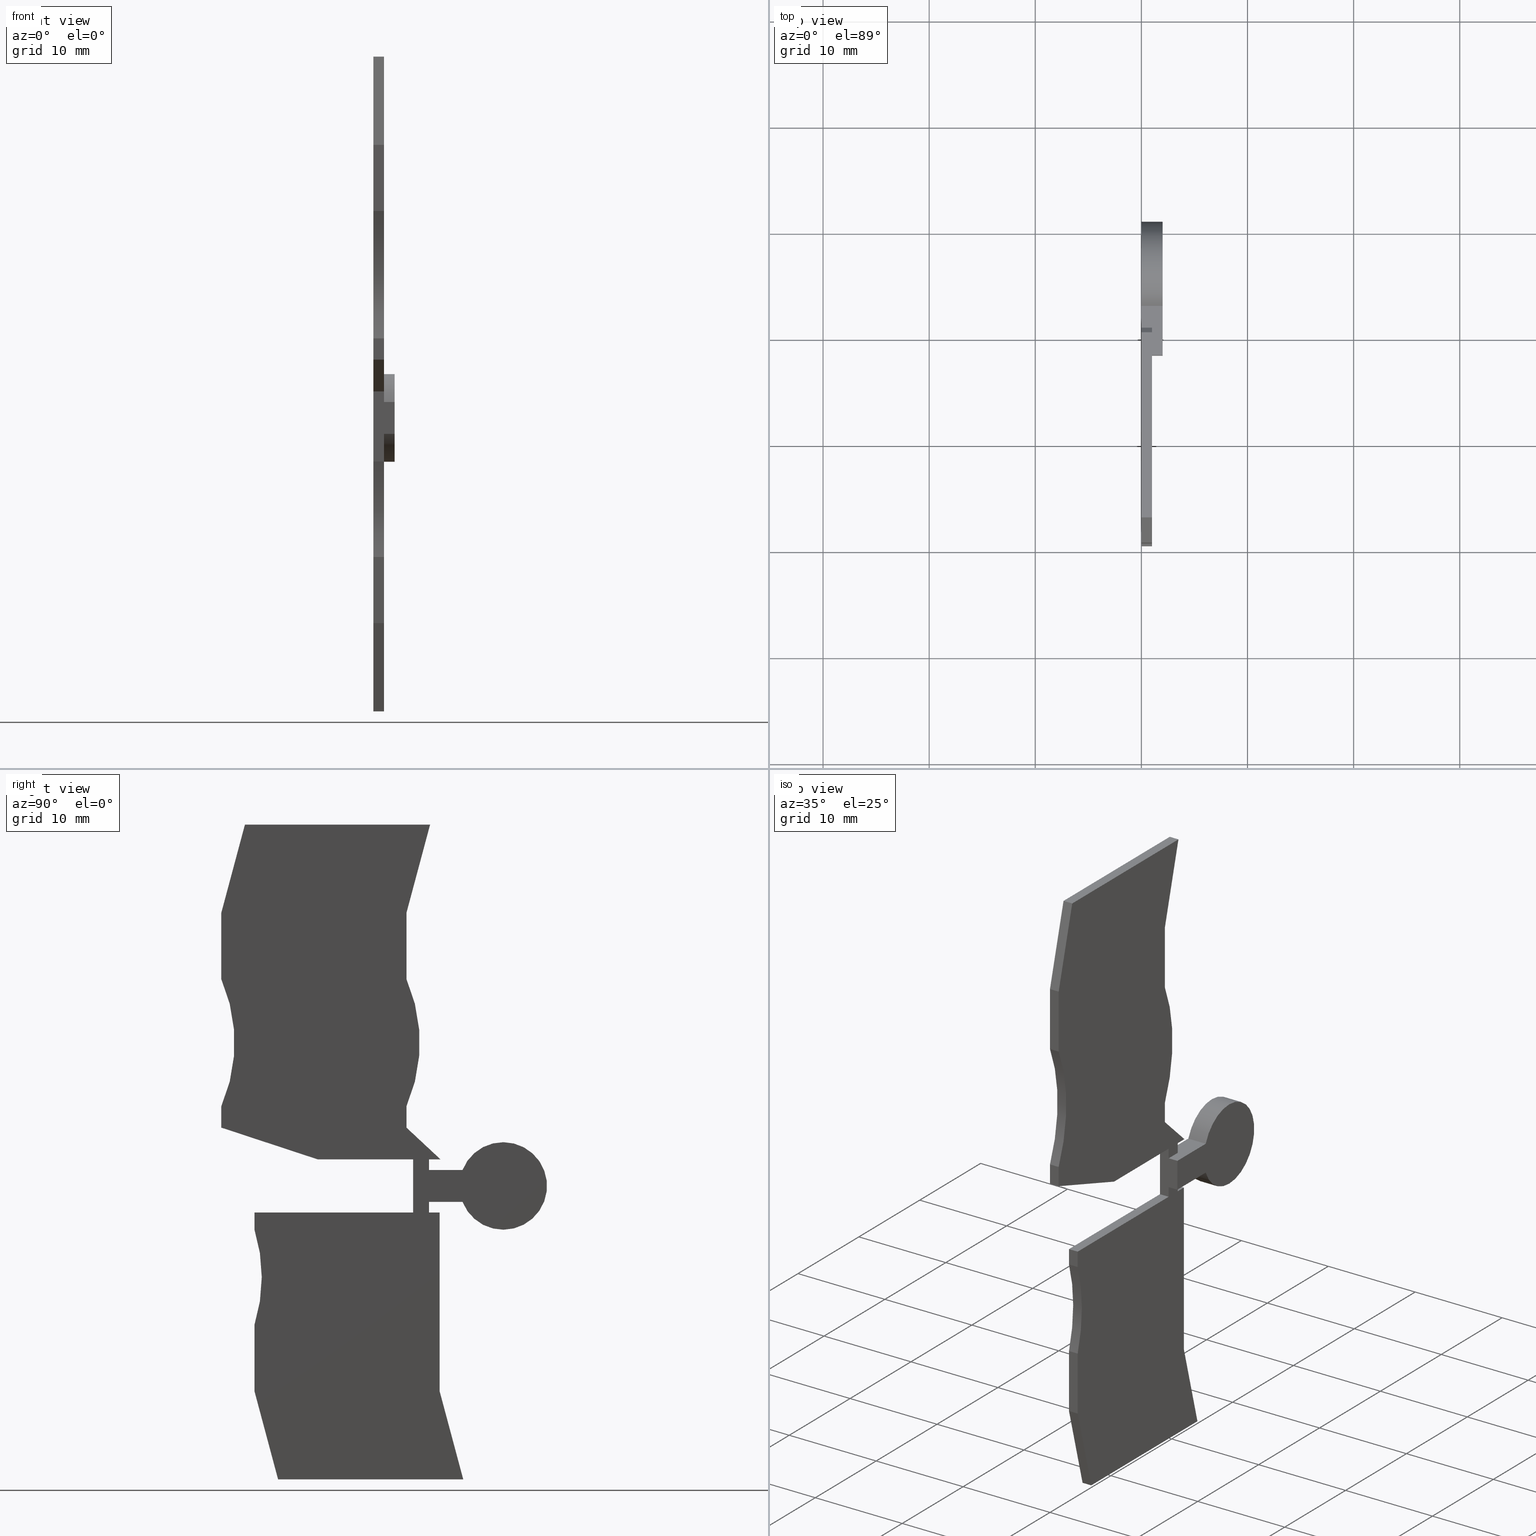
[diagram: canonical four-view strip — front | top / right | iso, engineering-drawing reading convention]
A machine part, canonical four-view strip (front | top / right | iso — engineering-drawing reading convention). The complete STEP part file that produces these views, byte-faithful:
ISO-10303-21;
HEADER;
FILE_DESCRIPTION(('Creo Elements/Direct Modeling STEP Export'),'2;1');
FILE_NAME(
'D:/temp/JobSpoolerServerData/JobServer Files/170c497e-db7a-4ceb-8cc5-0a
7523d1a4d2/work/output/model.stp','2018-03-06T12:17:24',(''),(''),
'Creo Elements/Direct Modeling STEP processor for AP214 (Solid Model)',
'Creo Elements/Direct Modeling 18.1I  14-Aug-2016 (C) Parametric Technol
ogy GmbH','');
FILE_SCHEMA(('AUTOMOTIVE_DESIGN { 1 0 10303 214 1 1 1 1 }'));
ENDSEC;
DATA;
#10=CARTESIAN_POINT('',(42.1016931115784,-23.9833568228416,
3.70000000003257));
#20=DIRECTION('',(0.,0.,1.));
#30=DIRECTION('',(-1.,1.22464679914735E-16,0.));
#40=AXIS2_PLACEMENT_3D('',#10,#20,#30);
#50=CYLINDRICAL_SURFACE('',#40,15.);
#60=CARTESIAN_POINT('',(27.7926050903251,-19.4833568228386,
3.70000000003257));
#70=DIRECTION('',(0.,0.,1.));
#80=VECTOR('',#70,1.);
#90=LINE('',#60,#80);
#100=CARTESIAN_POINT('',(27.7926050903251,-19.4833568228386,
3.70000000003257));
#110=VERTEX_POINT('',#100);
#120=CARTESIAN_POINT('',(27.7926050903251,-19.4833568228386,
4.70000000003257));
#130=VERTEX_POINT('',#120);
#140=EDGE_CURVE('',#110,#130,#90,.T.);
#150=ORIENTED_EDGE('',*,*,#140,.T.);
#160=CARTESIAN_POINT('',(42.1016931115784,-23.9833568228416,
3.70000000003257));
#170=DIRECTION('',(0.,0.,1.));
#180=DIRECTION('',(-1.,1.22464679914735E-16,0.));
#190=AXIS2_PLACEMENT_3D('',#160,#170,#180);
#200=CIRCLE('',#190,15.);
#210=CARTESIAN_POINT('',(27.7926050903252,-28.4833568228446,
3.70000000003257));
#220=VERTEX_POINT('',#210);
#230=EDGE_CURVE('',#110,#220,#200,.T.);
#240=ORIENTED_EDGE('',*,*,#230,.F.);
#250=CARTESIAN_POINT('',(27.7926050903252,-28.4833568228446,
3.70000000003257));
#260=DIRECTION('',(0.,0.,-1.));
#270=VECTOR('',#260,1.);
#280=LINE('',#250,#270);
#290=CARTESIAN_POINT('',(27.7926050903252,-28.4833568228446,
4.70000000003257));
#300=VERTEX_POINT('',#290);
#310=EDGE_CURVE('',#300,#220,#280,.T.);
#320=ORIENTED_EDGE('',*,*,#310,.T.);
#330=CARTESIAN_POINT('',(42.1016931115784,-23.9833568228416,
4.70000000003257));
#340=DIRECTION('',(0.,0.,1.));
#350=DIRECTION('',(-1.,1.22464679914735E-16,0.));
#360=AXIS2_PLACEMENT_3D('',#330,#340,#350);
#370=CIRCLE('',#360,15.);
#380=EDGE_CURVE('',#130,#300,#370,.T.);
#390=ORIENTED_EDGE('',*,*,#380,.T.);
#400=EDGE_LOOP('',(#390,#320,#240,#150));
#410=FACE_OUTER_BOUND('',#400,.T.);
#420=ADVANCED_FACE('',(#410),#50,.F.);
#430=COLOUR_RGB('',0.560784339904785,0.588235318660736,0.600000023841858
);
#440=FILL_AREA_STYLE_COLOUR('',#430);
#450=FILL_AREA_STYLE('',(#440));
#460=SURFACE_STYLE_FILL_AREA(#450);
#470=SURFACE_SIDE_STYLE('',(#460));
#480=SURFACE_STYLE_USAGE(.BOTH.,#470);
#490=PRESENTATION_STYLE_ASSIGNMENT((#480));
#500=CARTESIAN_POINT('',(27.7926050903252,-28.7806110286362,
3.70000000003257));
#510=DIRECTION('',(1.,-1.22464679914735E-16,0.));
#520=DIRECTION('',(-1.22464679914735E-16,-1.,0.));
#530=AXIS2_PLACEMENT_3D('',#500,#510,#520);
#540=PLANE('',#530);
#550=CARTESIAN_POINT('',(27.7926050903252,-34.7178123662187,
2.70000000003257));
#560=DIRECTION('',(0.,0.,-1.));
#570=VECTOR('',#560,1.);
#580=LINE('',#550,#570);
#590=CARTESIAN_POINT('',(27.7926050903252,-34.7178123662187,
4.70000000003257));
#600=VERTEX_POINT('',#590);
#610=CARTESIAN_POINT('',(27.7926050903252,-34.7178123662187,
3.70000000003257));
#620=VERTEX_POINT('',#610);
#630=EDGE_CURVE('',#600,#620,#580,.T.);
#640=ORIENTED_EDGE('',*,*,#630,.T.);
#650=CARTESIAN_POINT('',(27.7926050903252,6.334125,4.70000000003257));
#660=DIRECTION('',(-1.22464679914735E-16,-1.,0.));
#670=VECTOR('',#660,1.);
#680=LINE('',#650,#670);
#690=EDGE_CURVE('',#300,#600,#680,.T.);
#700=ORIENTED_EDGE('',*,*,#690,.T.);
#710=ORIENTED_EDGE('',*,*,#310,.F.);
#720=CARTESIAN_POINT('',(27.7926050903252,6.334125,3.70000000003257));
#730=DIRECTION('',(1.22464679914735E-16,1.,0.));
#740=VECTOR('',#730,1.);
#750=LINE('',#720,#740);
#760=EDGE_CURVE('',#620,#220,#750,.T.);
#770=ORIENTED_EDGE('',*,*,#760,.T.);
#780=EDGE_LOOP('',(#770,#710,#700,#640));
#790=FACE_OUTER_BOUND('',#780,.T.);
#800=ADVANCED_FACE('',(#790),#540,.T.);
#810=COLOUR_RGB('',0.560784339904785,0.588235318660736,0.600000023841858
);
#820=FILL_AREA_STYLE_COLOUR('',#810);
#830=FILL_AREA_STYLE('',(#820));
#840=SURFACE_STYLE_FILL_AREA(#830);
#850=SURFACE_SIDE_STYLE('',(#840));
#860=SURFACE_STYLE_USAGE(.BOTH.,#850);
#870=PRESENTATION_STYLE_ASSIGNMENT((#860));
#880=CARTESIAN_POINT('',(-22.8290705742314,5.54023584404125,
3.70000000003257));
#890=DIRECTION('',(0.,0.,-1.));
#900=DIRECTION('',(-1.,0.,0.));
#910=AXIS2_PLACEMENT_3D('',#880,#890,#900);
#920=PLANE('',#910);
#930=CARTESIAN_POINT('',(10.836572,-16.4983885066354,3.70000000003257));
#940=DIRECTION('',(0.949806217012117,0.312838856482264,0.));
#950=VECTOR('',#940,1.);
#960=LINE('',#930,#950);
#970=CARTESIAN_POINT('',(21.8121253777865,-12.8833568228378,
3.70000000003257));
#980=VERTEX_POINT('',#970);
#990=CARTESIAN_POINT('',(30.9174891315682,-9.8843118244286,
3.70000000003257));
#1000=VERTEX_POINT('',#990);
#1010=EDGE_CURVE('',#980,#1000,#960,.T.);
#1020=ORIENTED_EDGE('',*,*,#1010,.F.);
#1030=CARTESIAN_POINT('',(30.9174891315682,6.334125,3.70000000003257));
#1040=DIRECTION('',(0.,1.,0.));
#1050=VECTOR('',#1040,1.);
#1060=LINE('',#1030,#1050);
#1070=CARTESIAN_POINT('',(30.9174891315682,-7.88335682284202,
3.70000000003257));
#1080=VERTEX_POINT('',#1070);
#1090=EDGE_CURVE('',#1000,#1080,#1060,.T.);
#1100=ORIENTED_EDGE('',*,*,#1090,.F.);
#1110=CARTESIAN_POINT('',(44.6652162164344,-1.88335682283906,
3.70000000003257));
#1120=DIRECTION('',(0.,0.,1.));
#1130=DIRECTION('',(1.,0.,0.));
#1140=AXIS2_PLACEMENT_3D('',#1110,#1120,#1130);
#1150=CIRCLE('',#1140,15.);
#1160=CARTESIAN_POINT('',(30.9174891315669,4.11664317716097,
3.70000000003257));
#1170=VERTEX_POINT('',#1160);
#1180=EDGE_CURVE('',#1170,#1080,#1150,.T.);
#1190=ORIENTED_EDGE('',*,*,#1180,.T.);
#1200=CARTESIAN_POINT('',(30.9174891315669,6.334125,3.70000000003257));
#1210=DIRECTION('',(-2.77555756156289E-17,1.,0.));
#1220=VECTOR('',#1210,1.);
#1230=LINE('',#1200,#1220);
#1240=CARTESIAN_POINT('',(30.9174891315669,10.3510987205322,
3.70000000003257));
#1250=VERTEX_POINT('',#1240);
#1260=EDGE_CURVE('',#1170,#1250,#1230,.T.);
#1270=ORIENTED_EDGE('',*,*,#1260,.F.);
#1280=CARTESIAN_POINT('',(31.9938339960023,6.334125,3.70000000003257));
#1290=DIRECTION('',(-0.258819045102903,0.965925826288966,0.));
#1300=VECTOR('',#1290,1.);
#1310=LINE('',#1280,#1300);
#1320=CARTESIAN_POINT('',(28.6893457097867,18.6666431771532,
3.70000000003257));
#1330=VERTEX_POINT('',#1320);
#1340=EDGE_CURVE('',#1250,#1330,#1310,.T.);
#1350=ORIENTED_EDGE('',*,*,#1340,.F.);
#1360=CARTESIAN_POINT('',(10.836572,18.6666431771532,3.70000000003257));
#1370=DIRECTION('',(-1.,2.08170844255253E-16,0.));
#1380=VECTOR('',#1370,1.);
#1390=LINE('',#1360,#1380);
#1400=CARTESIAN_POINT('',(11.2393457097867,18.6666431771532,
3.70000000003257));
#1410=VERTEX_POINT('',#1400);
#1420=EDGE_CURVE('',#1330,#1410,#1390,.T.);
#1430=ORIENTED_EDGE('',*,*,#1420,.F.);
#1440=CARTESIAN_POINT('',(14.5438339960023,6.334125,3.70000000003257));
#1450=DIRECTION('',(0.258819045102908,-0.965925826288965,0.));
#1460=VECTOR('',#1450,1.);
#1470=LINE('',#1440,#1460);
#1480=CARTESIAN_POINT('',(13.4674891329061,10.3510987155344,
3.70000000003257));
#1490=VERTEX_POINT('',#1480);
#1500=EDGE_CURVE('',#1410,#1490,#1470,.T.);
#1510=ORIENTED_EDGE('',*,*,#1500,.F.);
#1520=CARTESIAN_POINT('',(13.4674891329061,6.334125,3.70000000003257));
#1530=DIRECTION('',(0.,-1.,0.));
#1540=VECTOR('',#1530,1.);
#1550=LINE('',#1520,#1540);
#1560=CARTESIAN_POINT('',(13.4674891329061,4.11664317715268,
3.70000000003257));
#1570=VERTEX_POINT('',#1560);
#1580=EDGE_CURVE('',#1490,#1570,#1550,.T.);
#1590=ORIENTED_EDGE('',*,*,#1580,.F.);
#1600=CARTESIAN_POINT('',(27.2152162177738,-1.88335682284693,
3.70000000003257));
#1610=DIRECTION('',(0.,0.,1.));
#1620=DIRECTION('',(1.,0.,0.));
#1630=AXIS2_PLACEMENT_3D('',#1600,#1610,#1620);
#1640=CIRCLE('',#1630,15.);
#1650=CARTESIAN_POINT('',(13.4674891329061,-7.88335682284652,
3.70000000003257));
#1660=VERTEX_POINT('',#1650);
#1670=EDGE_CURVE('',#1570,#1660,#1640,.T.);
#1680=ORIENTED_EDGE('',*,*,#1670,.F.);
#1690=CARTESIAN_POINT('',(13.4674891329061,6.334125,3.70000000003257));
#1700=DIRECTION('',(0.,-1.,0.));
#1710=VECTOR('',#1700,1.);
#1720=LINE('',#1690,#1710);
#1730=CARTESIAN_POINT('',(13.4674891329061,-9.88335682284312,
3.70000000003257));
#1740=VERTEX_POINT('',#1730);
#1750=EDGE_CURVE('',#1660,#1740,#1720,.T.);
#1760=ORIENTED_EDGE('',*,*,#1750,.F.);
#1770=CARTESIAN_POINT('',(10.836572,-12.3376813332395,3.70000000003257))
;
#1780=DIRECTION('',(-0.731221353984691,-0.682140257921196,0.));
#1790=VECTOR('',#1780,1.);
#1800=LINE('',#1770,#1790);
#1810=CARTESIAN_POINT('',(10.2516342753797,-12.8833568228378,
3.70000000003257));
#1820=VERTEX_POINT('',#1810);
#1830=EDGE_CURVE('',#1740,#1820,#1800,.T.);
#1840=ORIENTED_EDGE('',*,*,#1830,.F.);
#1850=CARTESIAN_POINT('',(10.836572,-12.8833568228378,3.70000000003257))
;
#1860=DIRECTION('',(1.,0.,0.));
#1870=VECTOR('',#1860,1.);
#1880=LINE('',#1850,#1870);
#1890=CARTESIAN_POINT('',(11.3426048224249,-12.8833568228378,
3.70000000003257));
#1900=VERTEX_POINT('',#1890);
#1910=EDGE_CURVE('',#1820,#1900,#1880,.T.);
#1920=ORIENTED_EDGE('',*,*,#1910,.F.);
#1930=CARTESIAN_POINT('',(11.3426048224249,6.334125,3.70000000003257));
#1940=DIRECTION('',(0.,-1.,0.));
#1950=VECTOR('',#1940,1.);
#1960=LINE('',#1930,#1950);
#1970=CARTESIAN_POINT('',(11.3426048224249,-13.8833568228378,
3.70000000003257));
#1980=VERTEX_POINT('',#1970);
#1990=EDGE_CURVE('',#1900,#1980,#1960,.T.);
#2000=ORIENTED_EDGE('',*,*,#1990,.F.);
#2010=CARTESIAN_POINT('',(10.836572,-13.8833568228378,3.70000000003257))
;
#2020=DIRECTION('',(1.,0.,0.));
#2030=VECTOR('',#2020,1.);
#2040=LINE('',#2010,#2030);
#2050=CARTESIAN_POINT('',(12.8426048224249,-13.8833568228378,
3.70000000003257));
#2060=VERTEX_POINT('',#2050);
#2070=EDGE_CURVE('',#1980,#2060,#2040,.T.);
#2080=ORIENTED_EDGE('',*,*,#2070,.F.);
#2090=CARTESIAN_POINT('',(12.8426048224249,6.334125,3.70000000003257));
#2100=DIRECTION('',(0.,1.,0.));
#2110=VECTOR('',#2100,1.);
#2120=LINE('',#2090,#2110);
#2130=CARTESIAN_POINT('',(12.8426048224249,-12.8833568228378,
3.70000000003257));
#2140=VERTEX_POINT('',#2130);
#2150=EDGE_CURVE('',#2060,#2140,#2120,.T.);
#2160=ORIENTED_EDGE('',*,*,#2150,.F.);
#2170=CARTESIAN_POINT('',(10.836572,-12.8833568228378,3.70000000003257))
;
#2180=DIRECTION('',(1.,0.,0.));
#2190=VECTOR('',#2180,1.);
#2200=LINE('',#2170,#2190);
#2210=EDGE_CURVE('',#2140,#980,#2200,.T.);
#2220=ORIENTED_EDGE('',*,*,#2210,.F.);
#2230=EDGE_LOOP('',(#2220,#2160,#2080,#2000,#1920,#1840,#1760,#1680,
#1590,#1510,#1430,#1350,#1270,#1190,#1100,#1020));
#2240=FACE_OUTER_BOUND('',#2230,.T.);
#2250=ADVANCED_FACE('',(#2240),#920,.T.);
#2260=COLOUR_RGB('',0.560784339904785,0.588235318660736,
0.600000023841858);
#2270=FILL_AREA_STYLE_COLOUR('',#2260);
#2280=FILL_AREA_STYLE('',(#2270));
#2290=SURFACE_STYLE_FILL_AREA(#2280);
#2300=SURFACE_SIDE_STYLE('',(#2290));
#2310=SURFACE_STYLE_USAGE(.BOTH.,#2300);
#2320=PRESENTATION_STYLE_ASSIGNMENT((#2310));
#2330=CARTESIAN_POINT('',(21.4912331232099,-12.8833568228378,
3.70000000003257));
#2340=DIRECTION('',(-0.,-1.,-0.));
#2350=DIRECTION('',(-1.,0.,0.));
#2360=AXIS2_PLACEMENT_3D('',#2330,#2340,#2350);
#2370=PLANE('',#2360);
#2380=ORIENTED_EDGE('',*,*,#2210,.T.);
#2390=CARTESIAN_POINT('',(12.8426048224249,-12.8833568228378,
2.70000000003257));
#2400=DIRECTION('',(0.,0.,1.));
#2410=VECTOR('',#2400,1.);
#2420=LINE('',#2390,#2410);
#2430=CARTESIAN_POINT('',(12.8426048224249,-12.8833568228378,
4.70000000003257));
#2440=VERTEX_POINT('',#2430);
#2450=EDGE_CURVE('',#2140,#2440,#2420,.T.);
#2460=ORIENTED_EDGE('',*,*,#2450,.F.);
#2470=CARTESIAN_POINT('',(10.836572,-12.8833568228378,4.70000000003257))
;
#2480=DIRECTION('',(-1.,0.,0.));
#2490=VECTOR('',#2480,1.);
#2500=LINE('',#2470,#2490);
#2510=CARTESIAN_POINT('',(21.8121253777865,-12.8833568228378,
4.70000000003257));
#2520=VERTEX_POINT('',#2510);
#2530=EDGE_CURVE('',#2520,#2440,#2500,.T.);
#2540=ORIENTED_EDGE('',*,*,#2530,.T.);
#2550=CARTESIAN_POINT('',(21.8121253777865,-12.8833568228378,
2.70000000003257));
#2560=DIRECTION('',(0.,0.,-1.));
#2570=VECTOR('',#2560,1.);
#2580=LINE('',#2550,#2570);
#2590=EDGE_CURVE('',#2520,#980,#2580,.T.);
#2600=ORIENTED_EDGE('',*,*,#2590,.F.);
#2610=EDGE_LOOP('',(#2600,#2540,#2460,#2380));
#2620=FACE_OUTER_BOUND('',#2610,.T.);
#2630=ADVANCED_FACE('',(#2620),#2370,.T.);
#2640=COLOUR_RGB('',0.560784339904785,0.588235318660736,
0.600000023841858);
#2650=FILL_AREA_STYLE_COLOUR('',#2640);
#2660=FILL_AREA_STYLE('',(#2650));
#2670=SURFACE_STYLE_FILL_AREA(#2660);
#2680=SURFACE_SIDE_STYLE('',(#2670));
#2690=SURFACE_STYLE_USAGE(.BOTH.,#2680);
#2700=PRESENTATION_STYLE_ASSIGNMENT((#2690));
#2710=CARTESIAN_POINT('',(10.6426050903255,-17.8833568228378,
3.70000000003257));
#2720=DIRECTION('',(1.22464679914735E-16,1.,0.));
#2730=DIRECTION('',(1.,-1.22464679914735E-16,0.));
#2740=AXIS2_PLACEMENT_3D('',#2710,#2720,#2730);
#2750=PLANE('',#2740);
#2760=CARTESIAN_POINT('',(27.7926050903251,-17.8833568228378,
2.70000000003257));
#2770=DIRECTION('',(0.,0.,-1.));
#2780=VECTOR('',#2770,1.);
#2790=LINE('',#2760,#2780);
#2800=CARTESIAN_POINT('',(27.7926050903251,-17.8833568228378,
4.70000000003257));
#2810=VERTEX_POINT('',#2800);
#2820=CARTESIAN_POINT('',(27.7926050903251,-17.8833568228378,
3.70000000003257));
#2830=VERTEX_POINT('',#2820);
#2840=EDGE_CURVE('',#2810,#2830,#2790,.T.);
#2850=ORIENTED_EDGE('',*,*,#2840,.T.);
#2860=CARTESIAN_POINT('',(10.836572,-17.8833568228378,4.70000000003257))
;
#2870=DIRECTION('',(1.,-1.22464679914735E-16,0.));
#2880=VECTOR('',#2870,1.);
#2890=LINE('',#2860,#2880);
#2900=CARTESIAN_POINT('',(12.8426048224249,-17.8833568228378,
4.70000000003257));
#2910=VERTEX_POINT('',#2900);
#2920=EDGE_CURVE('',#2910,#2810,#2890,.T.);
#2930=ORIENTED_EDGE('',*,*,#2920,.T.);
#2940=CARTESIAN_POINT('',(12.8426048224249,-17.8833568228378,
2.70000000003257));
#2950=DIRECTION('',(0.,0.,1.));
#2960=VECTOR('',#2950,1.);
#2970=LINE('',#2940,#2960);
#2980=CARTESIAN_POINT('',(12.8426048224249,-17.8833568228378,
3.70000000003257));
#2990=VERTEX_POINT('',#2980);
#3000=EDGE_CURVE('',#2990,#2910,#2970,.T.);
#3010=ORIENTED_EDGE('',*,*,#3000,.T.);
#3020=CARTESIAN_POINT('',(10.836572,-17.8833568228378,3.70000000003257))
;
#3030=DIRECTION('',(-1.,1.22464679914735E-16,0.));
#3040=VECTOR('',#3030,1.);
#3050=LINE('',#3020,#3040);
#3060=EDGE_CURVE('',#2830,#2990,#3050,.T.);
#3070=ORIENTED_EDGE('',*,*,#3060,.T.);
#3080=EDGE_LOOP('',(#3070,#3010,#2930,#2850));
#3090=FACE_OUTER_BOUND('',#3080,.T.);
#3100=ADVANCED_FACE('',(#3090),#2750,.T.);
#3110=COLOUR_RGB('',0.560784339904785,0.588235318660736,
0.600000023841858);
#3120=FILL_AREA_STYLE_COLOUR('',#3110);
#3130=FILL_AREA_STYLE('',(#3120));
#3140=SURFACE_STYLE_FILL_AREA(#3130);
#3150=SURFACE_SIDE_STYLE('',(#3140));
#3160=SURFACE_STYLE_USAGE(.BOTH.,#3150);
#3170=PRESENTATION_STYLE_ASSIGNMENT((#3160));
#3180=CARTESIAN_POINT('',(29.5431668445327,-10.3369740675404,
3.70000000003257));
#3190=DIRECTION('',(0.312838856482264,-0.949806217012117,0.));
#3200=DIRECTION('',(-0.949806217012117,-0.312838856482264,0.));
#3210=AXIS2_PLACEMENT_3D('',#3180,#3190,#3200);
#3220=PLANE('',#3210);
#3230=ORIENTED_EDGE('',*,*,#2590,.T.);
#3240=CARTESIAN_POINT('',(10.836572,-16.4983885066354,4.70000000003257))
;
#3250=DIRECTION('',(-0.949806217012117,-0.312838856482264,0.));
#3260=VECTOR('',#3250,1.);
#3270=LINE('',#3240,#3260);
#3280=CARTESIAN_POINT('',(30.9174891315682,-9.8843118244286,
4.70000000003257));
#3290=VERTEX_POINT('',#3280);
#3300=EDGE_CURVE('',#3290,#2520,#3270,.T.);
#3310=ORIENTED_EDGE('',*,*,#3300,.T.);
#3320=CARTESIAN_POINT('',(30.9174891315682,-9.88431182442861,
2.70000000003257));
#3330=DIRECTION('',(0.,0.,-1.));
#3340=VECTOR('',#3330,1.);
#3350=LINE('',#3320,#3340);
#3360=EDGE_CURVE('',#3290,#1000,#3350,.T.);
#3370=ORIENTED_EDGE('',*,*,#3360,.F.);
#3380=ORIENTED_EDGE('',*,*,#1010,.T.);
#3390=EDGE_LOOP('',(#3380,#3370,#3310,#3230));
#3400=FACE_OUTER_BOUND('',#3390,.T.);
#3410=ADVANCED_FACE('',(#3400),#3220,.T.);
#3420=COLOUR_RGB('',0.560784339904785,0.588235318660736,
0.600000023841858);
#3430=FILL_AREA_STYLE_COLOUR('',#3420);
#3440=FILL_AREA_STYLE('',(#3430));
#3450=SURFACE_STYLE_FILL_AREA(#3440);
#3460=SURFACE_SIDE_STYLE('',(#3450));
#3470=SURFACE_STYLE_USAGE(.BOTH.,#3460);
#3480=PRESENTATION_STYLE_ASSIGNMENT((#3470));
#3490=CARTESIAN_POINT('',(8.21565153251075,-42.6557111093088,
3.70000000003257));
#3500=DIRECTION('',(-0.965925826288967,0.258819045102899,0.));
#3510=DIRECTION('',(0.258819045102899,0.965925826288967,0.));
#3520=AXIS2_PLACEMENT_3D('',#3490,#3500,#3510);
#3530=PLANE('',#3520);
#3540=CARTESIAN_POINT('',(21.3424385553537,6.334125,3.70000000003257));
#3550=DIRECTION('',(-0.258819045102899,-0.965925826288967,0.));
#3560=VECTOR('',#3550,1.);
#3570=LINE('',#3540,#3560);
#3580=CARTESIAN_POINT('',(10.3426050903255,-34.717812366217,
3.70000000003257));
#3590=VERTEX_POINT('',#3580);
#3600=CARTESIAN_POINT('',(8.11446166854492,-43.0333568228397,
3.70000000003257));
#3610=VERTEX_POINT('',#3600);
#3620=EDGE_CURVE('',#3590,#3610,#3570,.T.);
#3630=ORIENTED_EDGE('',*,*,#3620,.T.);
#3640=CARTESIAN_POINT('',(10.3426050903255,-34.717812366217,
2.70000000003257));
#3650=DIRECTION('',(0.,0.,-1.));
#3660=VECTOR('',#3650,1.);
#3670=LINE('',#3640,#3660);
#3680=CARTESIAN_POINT('',(10.3426050903255,-34.7178123662171,
4.70000000003257));
#3690=VERTEX_POINT('',#3680);
#3700=EDGE_CURVE('',#3690,#3590,#3670,.T.);
#3710=ORIENTED_EDGE('',*,*,#3700,.T.);
#3720=CARTESIAN_POINT('',(21.3424385553537,6.334125,4.70000000003257));
#3730=DIRECTION('',(0.258819045102899,0.965925826288967,0.));
#3740=VECTOR('',#3730,1.);
#3750=LINE('',#3720,#3740);
#3760=CARTESIAN_POINT('',(8.11446166854492,-43.0333568228397,
4.70000000003257));
#3770=VERTEX_POINT('',#3760);
#3780=EDGE_CURVE('',#3770,#3690,#3750,.T.);
#3790=ORIENTED_EDGE('',*,*,#3780,.T.);
#3800=CARTESIAN_POINT('',(8.11446166854492,-43.0333568228397,
2.70000000003257));
#3810=DIRECTION('',(0.,0.,-1.));
#3820=VECTOR('',#3810,1.);
#3830=LINE('',#3800,#3820);
#3840=EDGE_CURVE('',#3770,#3610,#3830,.T.);
#3850=ORIENTED_EDGE('',*,*,#3840,.F.);
#3860=EDGE_LOOP('',(#3850,#3790,#3710,#3630));
#3870=FACE_OUTER_BOUND('',#3860,.T.);
#3880=ADVANCED_FACE('',(#3870),#3530,.T.);
#3890=COLOUR_RGB('',0.560784339904785,0.588235318660736,
0.600000023841858);
#3900=FILL_AREA_STYLE_COLOUR('',#3890);
#3910=FILL_AREA_STYLE('',(#3900));
#3920=SURFACE_STYLE_FILL_AREA(#3910);
#3930=SURFACE_SIDE_STYLE('',(#3920));
#3940=SURFACE_STYLE_USAGE(.BOTH.,#3930);
#3950=PRESENTATION_STYLE_ASSIGNMENT((#3940));
#3960=CARTESIAN_POINT('',(30.9174891315682,-8.28719096033279,
3.70000000003257));
#3970=DIRECTION('',(1.,0.,0.));
#3980=DIRECTION('',(0.,-1.,0.));
#3990=AXIS2_PLACEMENT_3D('',#3960,#3970,#3980);
#4000=PLANE('',#3990);
#4010=ORIENTED_EDGE('',*,*,#3360,.T.);
#4020=CARTESIAN_POINT('',(30.9174891315682,6.334125,4.70000000003257));
#4030=DIRECTION('',(0.,-1.,0.));
#4040=VECTOR('',#4030,1.);
#4050=LINE('',#4020,#4040);
#4060=CARTESIAN_POINT('',(30.9174891315682,-7.88335682284202,
4.70000000003257));
#4070=VERTEX_POINT('',#4060);
#4080=EDGE_CURVE('',#4070,#3290,#4050,.T.);
#4090=ORIENTED_EDGE('',*,*,#4080,.T.);
#4100=CARTESIAN_POINT('',(30.9174891315682,-7.88335682284202,
3.70000000003257));
#4110=DIRECTION('',(0.,0.,-1.));
#4120=VECTOR('',#4110,1.);
#4130=LINE('',#4100,#4120);
#4140=EDGE_CURVE('',#4070,#1080,#4130,.T.);
#4150=ORIENTED_EDGE('',*,*,#4140,.F.);
#4160=ORIENTED_EDGE('',*,*,#1090,.T.);
#4170=EDGE_LOOP('',(#4160,#4150,#4090,#4010));
#4180=FACE_OUTER_BOUND('',#4170,.T.);
#4190=ADVANCED_FACE('',(#4180),#4000,.T.);
#4200=COLOUR_RGB('',0.560784339904785,0.588235318660736,
0.600000023841858);
#4210=FILL_AREA_STYLE_COLOUR('',#4200);
#4220=FILL_AREA_STYLE('',(#4210));
#4230=SURFACE_STYLE_FILL_AREA(#4220);
#4240=SURFACE_SIDE_STYLE('',(#4230));
#4250=SURFACE_STYLE_USAGE(.BOTH.,#4240);
#4260=PRESENTATION_STYLE_ASSIGNMENT((#4250));
#4270=CARTESIAN_POINT('',(13.1805663120009,-32.0955988228394,
3.70000000003257));
#4280=DIRECTION('',(0.,-0.,-1.));
#4290=DIRECTION('',(1.,-1.22464679914735E-16,0.));
#4300=AXIS2_PLACEMENT_3D('',#4270,#4280,#4290);
#4310=PLANE('',#4300);
#4320=CARTESIAN_POINT('',(10.3426050903255,6.334125,3.70000000003257));
#4330=DIRECTION('',(-1.83847064084899E-17,-1.,0.));
#4340=VECTOR('',#4330,1.);
#4350=LINE('',#4320,#4340);
#4360=CARTESIAN_POINT('',(10.3426050903255,-17.8833568228378,
3.70000000003257));
#4370=VERTEX_POINT('',#4360);
#4380=EDGE_CURVE('',#4370,#3590,#4350,.T.);
#4390=ORIENTED_EDGE('',*,*,#4380,.F.);
#4400=ORIENTED_EDGE('',*,*,#3620,.F.);
#4410=CARTESIAN_POINT('',(10.836572,-43.0333568228397,3.70000000003257))
;
#4420=DIRECTION('',(1.,-1.22464679914735E-16,0.));
#4430=VECTOR('',#4420,1.);
#4440=LINE('',#4410,#4430);
#4450=CARTESIAN_POINT('',(25.5644616685449,-43.0333568228397,
3.70000000003257));
#4460=VERTEX_POINT('',#4450);
#4470=EDGE_CURVE('',#3610,#4460,#4440,.T.);
#4480=ORIENTED_EDGE('',*,*,#4470,.F.);
#4490=CARTESIAN_POINT('',(38.7924385553539,6.334125,3.70000000003257));
#4500=DIRECTION('',(0.258819045102903,0.965925826288966,0.));
#4510=VECTOR('',#4500,1.);
#4520=LINE('',#4490,#4510);
#4530=EDGE_CURVE('',#4460,#620,#4520,.T.);
#4540=ORIENTED_EDGE('',*,*,#4530,.F.);
#4550=ORIENTED_EDGE('',*,*,#760,.F.);
#4560=ORIENTED_EDGE('',*,*,#230,.T.);
#4570=CARTESIAN_POINT('',(27.7926050903252,6.334125,3.70000000003257));
#4580=DIRECTION('',(1.22464679914735E-16,1.,0.));
#4590=VECTOR('',#4580,1.);
#4600=LINE('',#4570,#4590);
#4610=EDGE_CURVE('',#110,#2830,#4600,.T.);
#4620=ORIENTED_EDGE('',*,*,#4610,.F.);
#4630=ORIENTED_EDGE('',*,*,#3060,.F.);
#4640=CARTESIAN_POINT('',(12.8426048224249,6.334125,3.70000000003257));
#4650=DIRECTION('',(0.,1.,0.));
#4660=VECTOR('',#4650,1.);
#4670=LINE('',#4640,#4660);
#4680=CARTESIAN_POINT('',(12.8426048224249,-16.8833568228378,
3.70000000003257));
#4690=VERTEX_POINT('',#4680);
#4700=EDGE_CURVE('',#2990,#4690,#4670,.T.);
#4710=ORIENTED_EDGE('',*,*,#4700,.F.);
#4720=CARTESIAN_POINT('',(10.836572,-16.8833568228378,3.70000000003257))
;
#4730=DIRECTION('',(-1.,0.,0.));
#4740=VECTOR('',#4730,1.);
#4750=LINE('',#4720,#4740);
#4760=CARTESIAN_POINT('',(11.3426048224249,-16.8833568228378,
3.70000000003257));
#4770=VERTEX_POINT('',#4760);
#4780=EDGE_CURVE('',#4690,#4770,#4750,.T.);
#4790=ORIENTED_EDGE('',*,*,#4780,.F.);
#4800=CARTESIAN_POINT('',(11.3426048224249,6.334125,3.70000000003257));
#4810=DIRECTION('',(0.,-1.,0.));
#4820=VECTOR('',#4810,1.);
#4830=LINE('',#4800,#4820);
#4840=CARTESIAN_POINT('',(11.3426048224249,-17.8833568228378,
3.70000000003257));
#4850=VERTEX_POINT('',#4840);
#4860=EDGE_CURVE('',#4770,#4850,#4830,.T.);
#4870=ORIENTED_EDGE('',*,*,#4860,.F.);
#4880=CARTESIAN_POINT('',(10.836572,-17.8833568228378,3.70000000003257))
;
#4890=DIRECTION('',(-1.,1.22464679914735E-16,0.));
#4900=VECTOR('',#4890,1.);
#4910=LINE('',#4880,#4900);
#4920=EDGE_CURVE('',#4850,#4370,#4910,.T.);
#4930=ORIENTED_EDGE('',*,*,#4920,.F.);
#4940=EDGE_LOOP('',(#4930,#4870,#4790,#4710,#4630,#4620,#4560,#4550,
#4540,#4480,#4400,#4390));
#4950=FACE_OUTER_BOUND('',#4940,.T.);
#4960=ADVANCED_FACE('',(#4950),#4310,.T.);
#4970=COLOUR_RGB('',0.560784339904785,0.588235318660736,
0.600000023841858);
#4980=FILL_AREA_STYLE_COLOUR('',#4970);
#4990=FILL_AREA_STYLE('',(#4980));
#5000=SURFACE_STYLE_FILL_AREA(#4990);
#5010=SURFACE_SIDE_STYLE('',(#5000));
#5020=SURFACE_STYLE_USAGE(.BOTH.,#5010);
#5030=PRESENTATION_STYLE_ASSIGNMENT((#5020));
#5040=CARTESIAN_POINT('',(44.6652162164344,-1.88335682283906,
3.70000000003257));
#5050=DIRECTION('',(0.,0.,1.));
#5060=DIRECTION('',(1.,0.,0.));
#5070=AXIS2_PLACEMENT_3D('',#5040,#5050,#5060);
#5080=CYLINDRICAL_SURFACE('',#5070,15.);
#5090=CARTESIAN_POINT('',(30.9174891315669,4.11664317716097,
3.70000000003257));
#5100=DIRECTION('',(0.,0.,1.));
#5110=VECTOR('',#5100,1.);
#5120=LINE('',#5090,#5110);
#5130=CARTESIAN_POINT('',(30.9174891315669,4.11664317716097,
4.70000000003257));
#5140=VERTEX_POINT('',#5130);
#5150=EDGE_CURVE('',#1170,#5140,#5120,.T.);
#5160=ORIENTED_EDGE('',*,*,#5150,.T.);
#5170=ORIENTED_EDGE('',*,*,#1180,.F.);
#5180=ORIENTED_EDGE('',*,*,#4140,.T.);
#5190=CARTESIAN_POINT('',(44.6652162164344,-1.88335682283906,
4.70000000003257));
#5200=DIRECTION('',(0.,0.,1.));
#5210=DIRECTION('',(1.,0.,0.));
#5220=AXIS2_PLACEMENT_3D('',#5190,#5200,#5210);
#5230=CIRCLE('',#5220,15.);
#5240=EDGE_CURVE('',#5140,#4070,#5230,.T.);
#5250=ORIENTED_EDGE('',*,*,#5240,.T.);
#5260=EDGE_LOOP('',(#5250,#5180,#5170,#5160));
#5270=FACE_OUTER_BOUND('',#5260,.T.);
#5280=ADVANCED_FACE('',(#5270),#5080,.F.);
#5290=COLOUR_RGB('',0.560784339904785,0.588235318660736,
0.600000023841858);
#5300=FILL_AREA_STYLE_COLOUR('',#5290);
#5310=FILL_AREA_STYLE('',(#5300));
#5320=SURFACE_STYLE_FILL_AREA(#5310);
#5330=SURFACE_SIDE_STYLE('',(#5320));
#5340=SURFACE_STYLE_USAGE(.BOTH.,#5330);
#5350=PRESENTATION_STYLE_ASSIGNMENT((#5340));
#5360=CARTESIAN_POINT('',(24.0724116007493,9.56768417716366,
4.70000000003257));
#5370=DIRECTION('',(0.,0.,1.));
#5380=DIRECTION('',(1.,0.,0.));
#5390=AXIS2_PLACEMENT_3D('',#5360,#5370,#5380);
#5400=PLANE('',#5390);
#5410=ORIENTED_EDGE('',*,*,#2530,.F.);
#5420=CARTESIAN_POINT('',(12.8426048224249,3.45076817715801,
4.70000000003257));
#5430=DIRECTION('',(0.,-1.,0.));
#5440=VECTOR('',#5430,1.);
#5450=LINE('',#5420,#5440);
#5460=EDGE_CURVE('',#2440,#2910,#5450,.T.);
#5470=ORIENTED_EDGE('',*,*,#5460,.F.);
#5480=ORIENTED_EDGE('',*,*,#2920,.F.);
#5490=CARTESIAN_POINT('',(27.7926050903252,6.334125,4.70000000003257));
#5500=DIRECTION('',(-1.22464679914735E-16,-1.,0.));
#5510=VECTOR('',#5500,1.);
#5520=LINE('',#5490,#5510);
#5530=EDGE_CURVE('',#2810,#130,#5520,.T.);
#5540=ORIENTED_EDGE('',*,*,#5530,.F.);
#5550=ORIENTED_EDGE('',*,*,#380,.F.);
#5560=ORIENTED_EDGE('',*,*,#690,.F.);
#5570=CARTESIAN_POINT('',(38.7924385553539,6.334125,4.70000000003257));
#5580=DIRECTION('',(-0.258819045102903,-0.965925826288966,0.));
#5590=VECTOR('',#5580,1.);
#5600=LINE('',#5570,#5590);
#5610=CARTESIAN_POINT('',(25.5644616685449,-43.0333568228397,
4.70000000003257));
#5620=VERTEX_POINT('',#5610);
#5630=EDGE_CURVE('',#600,#5620,#5600,.T.);
#5640=ORIENTED_EDGE('',*,*,#5630,.F.);
#5650=CARTESIAN_POINT('',(10.836572,-43.0333568228397,4.70000000003257))
;
#5660=DIRECTION('',(-1.,1.22464679914735E-16,0.));
#5670=VECTOR('',#5660,1.);
#5680=LINE('',#5650,#5670);
#5690=EDGE_CURVE('',#5620,#3770,#5680,.T.);
#5700=ORIENTED_EDGE('',*,*,#5690,.F.);
#5710=ORIENTED_EDGE('',*,*,#3780,.F.);
#5720=CARTESIAN_POINT('',(10.3426050903255,6.334125,4.70000000003257));
#5730=DIRECTION('',(1.83847064084899E-17,1.,0.));
#5740=VECTOR('',#5730,1.);
#5750=LINE('',#5720,#5740);
#5760=CARTESIAN_POINT('',(10.3426050903255,-17.8833568228378,
4.70000000003257));
#5770=VERTEX_POINT('',#5760);
#5780=EDGE_CURVE('',#3690,#5770,#5750,.T.);
#5790=ORIENTED_EDGE('',*,*,#5780,.F.);
#5800=CARTESIAN_POINT('',(10.836572,-17.8833568228378,4.70000000003257))
;
#5810=DIRECTION('',(1.,-1.22464679914735E-16,0.));
#5820=VECTOR('',#5810,1.);
#5830=LINE('',#5800,#5820);
#5840=CARTESIAN_POINT('',(11.3426048224249,-17.8833568228378,
4.70000000003257));
#5850=VERTEX_POINT('',#5840);
#5860=EDGE_CURVE('',#5770,#5850,#5830,.T.);
#5870=ORIENTED_EDGE('',*,*,#5860,.F.);
#5880=CARTESIAN_POINT('',(11.3426048224249,3.45076817715801,
4.70000000003257));
#5890=DIRECTION('',(0.,1.,0.));
#5900=VECTOR('',#5890,1.);
#5910=LINE('',#5880,#5900);
#5920=CARTESIAN_POINT('',(11.3426048224249,-16.8833568228378,
4.70000000003257));
#5930=VERTEX_POINT('',#5920);
#5940=EDGE_CURVE('',#5850,#5930,#5910,.T.);
#5950=ORIENTED_EDGE('',*,*,#5940,.F.);
#5960=CARTESIAN_POINT('',(10.836572,-16.8833568228378,4.70000000003257))
;
#5970=DIRECTION('',(1.,0.,0.));
#5980=VECTOR('',#5970,1.);
#5990=LINE('',#5960,#5980);
#6000=CARTESIAN_POINT('',(8.18518711016459,-16.8833568228378,
4.70000000003257));
#6010=VERTEX_POINT('',#6000);
#6020=EDGE_CURVE('',#6010,#5930,#5990,.T.);
#6030=ORIENTED_EDGE('',*,*,#6020,.T.);
#6040=CARTESIAN_POINT('',(4.34260491212486,-15.3833568228378,
4.70000000003257));
#6050=DIRECTION('',(0.,0.,1.));
#6060=DIRECTION('',(6.12323399573677E-17,-1.,0.));
#6070=AXIS2_PLACEMENT_3D('',#6040,#6050,#6060);
#6080=CIRCLE('',#6070,4.12497732705185);
#6090=CARTESIAN_POINT('',(8.18518711016458,-13.8833568228378,
4.70000000003257));
#6100=VERTEX_POINT('',#6090);
#6110=EDGE_CURVE('',#6100,#6010,#6080,.T.);
#6120=ORIENTED_EDGE('',*,*,#6110,.T.);
#6130=CARTESIAN_POINT('',(10.836572,-13.8833568228385,4.70000000003257))
;
#6140=DIRECTION('',(-1.,0.,0.));
#6150=VECTOR('',#6140,1.);
#6160=LINE('',#6130,#6150);
#6170=CARTESIAN_POINT('',(11.3426048224249,-13.8833568228378,
4.70000000003257));
#6180=VERTEX_POINT('',#6170);
#6190=EDGE_CURVE('',#6180,#6100,#6160,.T.);
#6200=ORIENTED_EDGE('',*,*,#6190,.T.);
#6210=CARTESIAN_POINT('',(11.3426048224249,-12.8833568228378,
4.70000000003257));
#6220=VERTEX_POINT('',#6210);
#6230=EDGE_CURVE('',#6180,#6220,#5910,.T.);
#6240=ORIENTED_EDGE('',*,*,#6230,.F.);
#6250=CARTESIAN_POINT('',(10.836572,-12.8833568228378,4.70000000003257))
;
#6260=DIRECTION('',(-1.,0.,0.));
#6270=VECTOR('',#6260,1.);
#6280=LINE('',#6250,#6270);
#6290=CARTESIAN_POINT('',(10.2516342753797,-12.8833568228378,
4.70000000003257));
#6300=VERTEX_POINT('',#6290);
#6310=EDGE_CURVE('',#6220,#6300,#6280,.T.);
#6320=ORIENTED_EDGE('',*,*,#6310,.F.);
#6330=CARTESIAN_POINT('',(10.836572,-12.3376813332395,4.70000000003257))
;
#6340=DIRECTION('',(0.731221353984691,0.682140257921196,0.));
#6350=VECTOR('',#6340,1.);
#6360=LINE('',#6330,#6350);
#6370=CARTESIAN_POINT('',(13.4674891329061,-9.88335682284312,
4.70000000003257));
#6380=VERTEX_POINT('',#6370);
#6390=EDGE_CURVE('',#6300,#6380,#6360,.T.);
#6400=ORIENTED_EDGE('',*,*,#6390,.F.);
#6410=CARTESIAN_POINT('',(13.4674891329061,6.334125,4.70000000003257));
#6420=DIRECTION('',(0.,1.,0.));
#6430=VECTOR('',#6420,1.);
#6440=LINE('',#6410,#6430);
#6450=CARTESIAN_POINT('',(13.4674891329061,-7.88335682284652,
4.70000000003257));
#6460=VERTEX_POINT('',#6450);
#6470=EDGE_CURVE('',#6380,#6460,#6440,.T.);
#6480=ORIENTED_EDGE('',*,*,#6470,.F.);
#6490=CARTESIAN_POINT('',(27.2152162177738,-1.88335682284693,
4.70000000003257));
#6500=DIRECTION('',(0.,0.,1.));
#6510=DIRECTION('',(1.,0.,0.));
#6520=AXIS2_PLACEMENT_3D('',#6490,#6500,#6510);
#6530=CIRCLE('',#6520,15.);
#6540=CARTESIAN_POINT('',(13.4674891329061,4.11664317715268,
4.70000000003257));
#6550=VERTEX_POINT('',#6540);
#6560=EDGE_CURVE('',#6550,#6460,#6530,.T.);
#6570=ORIENTED_EDGE('',*,*,#6560,.T.);
#6580=CARTESIAN_POINT('',(13.4674891329061,6.334125,4.70000000003257));
#6590=DIRECTION('',(0.,1.,0.));
#6600=VECTOR('',#6590,1.);
#6610=LINE('',#6580,#6600);
#6620=CARTESIAN_POINT('',(13.4674891329061,10.3510987155344,
4.70000000003257));
#6630=VERTEX_POINT('',#6620);
#6640=EDGE_CURVE('',#6550,#6630,#6610,.T.);
#6650=ORIENTED_EDGE('',*,*,#6640,.F.);
#6660=CARTESIAN_POINT('',(14.5438339960023,6.334125,4.70000000003257));
#6670=DIRECTION('',(-0.258819045102908,0.965925826288965,0.));
#6680=VECTOR('',#6670,1.);
#6690=LINE('',#6660,#6680);
#6700=CARTESIAN_POINT('',(11.2393457097867,18.6666431771532,
4.70000000003257));
#6710=VERTEX_POINT('',#6700);
#6720=EDGE_CURVE('',#6630,#6710,#6690,.T.);
#6730=ORIENTED_EDGE('',*,*,#6720,.F.);
#6740=CARTESIAN_POINT('',(10.836572,18.6666431771532,4.70000000003257));
#6750=DIRECTION('',(1.,-2.08170844255253E-16,0.));
#6760=VECTOR('',#6750,1.);
#6770=LINE('',#6740,#6760);
#6780=CARTESIAN_POINT('',(28.6893457097867,18.6666431771532,
4.70000000003257));
#6790=VERTEX_POINT('',#6780);
#6800=EDGE_CURVE('',#6710,#6790,#6770,.T.);
#6810=ORIENTED_EDGE('',*,*,#6800,.F.);
#6820=CARTESIAN_POINT('',(31.9938339960023,6.334125,4.70000000003257));
#6830=DIRECTION('',(0.258819045102903,-0.965925826288966,0.));
#6840=VECTOR('',#6830,1.);
#6850=LINE('',#6820,#6840);
#6860=CARTESIAN_POINT('',(30.9174891315669,10.3510987205322,
4.70000000003257));
#6870=VERTEX_POINT('',#6860);
#6880=EDGE_CURVE('',#6790,#6870,#6850,.T.);
#6890=ORIENTED_EDGE('',*,*,#6880,.F.);
#6900=CARTESIAN_POINT('',(30.9174891315669,6.334125,4.70000000003257));
#6910=DIRECTION('',(2.77555756156289E-17,-1.,0.));
#6920=VECTOR('',#6910,1.);
#6930=LINE('',#6900,#6920);
#6940=EDGE_CURVE('',#6870,#5140,#6930,.T.);
#6950=ORIENTED_EDGE('',*,*,#6940,.F.);
#6960=ORIENTED_EDGE('',*,*,#5240,.F.);
#6970=ORIENTED_EDGE('',*,*,#4080,.F.);
#6980=ORIENTED_EDGE('',*,*,#3300,.F.);
#6990=EDGE_LOOP('',(#6980,#6970,#6960,#6950,#6890,#6810,#6730,#6650,
#6570,#6480,#6400,#6320,#6240,#6200,#6120,#6030,#5950,#5870,#5790,#5710,
#5700,#5640,#5560,#5550,#5540,#5480,#5470,#5410));
#7000=FACE_OUTER_BOUND('',#6990,.T.);
#7010=ADVANCED_FACE('',(#7000),#5400,.T.);
#7020=COLOUR_RGB('',0.560784339904785,0.588235318660736,
0.600000023841858);
#7030=FILL_AREA_STYLE_COLOUR('',#7020);
#7040=FILL_AREA_STYLE('',(#7030));
#7050=SURFACE_STYLE_FILL_AREA(#7040);
#7060=SURFACE_SIDE_STYLE('',(#7050));
#7070=SURFACE_STYLE_USAGE(.BOTH.,#7060);
#7080=PRESENTATION_STYLE_ASSIGNMENT((#7070));
#7090=CARTESIAN_POINT('',(30.9174891315669,10.2852724717384,
3.70000000003257));
#7100=DIRECTION('',(1.,2.77555756156289E-17,0.));
#7110=DIRECTION('',(2.77555756156289E-17,-1.,0.));
#7120=AXIS2_PLACEMENT_3D('',#7090,#7100,#7110);
#7130=PLANE('',#7120);
#7140=ORIENTED_EDGE('',*,*,#6940,.T.);
#7150=CARTESIAN_POINT('',(30.9174891315669,10.3510987205322,
2.70000000003257));
#7160=DIRECTION('',(0.,0.,-1.));
#7170=VECTOR('',#7160,1.);
#7180=LINE('',#7150,#7170);
#7190=EDGE_CURVE('',#6870,#1250,#7180,.T.);
#7200=ORIENTED_EDGE('',*,*,#7190,.F.);
#7210=ORIENTED_EDGE('',*,*,#1260,.T.);
#7220=ORIENTED_EDGE('',*,*,#5150,.F.);
#7230=EDGE_LOOP('',(#7220,#7210,#7200,#7140));
#7240=FACE_OUTER_BOUND('',#7230,.T.);
#7250=ADVANCED_FACE('',(#7240),#7130,.T.);
#7260=COLOUR_RGB('',0.560784339904785,0.588235318660736,
0.600000023841858);
#7270=FILL_AREA_STYLE_COLOUR('',#7260);
#7280=FILL_AREA_STYLE('',(#7270));
#7290=SURFACE_STYLE_FILL_AREA(#7280);
#7300=SURFACE_SIDE_STYLE('',(#7290));
#7310=SURFACE_STYLE_USAGE(.BOTH.,#7300);
#7320=PRESENTATION_STYLE_ASSIGNMENT((#7310));
#7330=CARTESIAN_POINT('',(4.34260491212486,-15.3833568228378,
2.70000000003257));
#7340=DIRECTION('',(0.,0.,1.));
#7350=DIRECTION('',(6.12323399573677E-17,-1.,0.));
#7360=AXIS2_PLACEMENT_3D('',#7330,#7340,#7350);
#7370=CYLINDRICAL_SURFACE('',#7360,4.12497732705185);
#7380=CARTESIAN_POINT('',(8.18518711016458,-13.8833568228378,
2.70000000003257));
#7390=DIRECTION('',(0.,0.,1.));
#7400=VECTOR('',#7390,1.);
#7410=LINE('',#7380,#7400);
#7420=CARTESIAN_POINT('',(8.18518711016485,-13.8833568228378,
2.70000000003257));
#7430=VERTEX_POINT('',#7420);
#7440=EDGE_CURVE('',#7430,#6100,#7410,.T.);
#7450=ORIENTED_EDGE('',*,*,#7440,.F.);
#7460=ORIENTED_EDGE('',*,*,#6110,.F.);
#7470=CARTESIAN_POINT('',(8.18518711016459,-16.8833568228378,
2.70000000003257));
#7480=DIRECTION('',(0.,0.,1.));
#7490=VECTOR('',#7480,1.);
#7500=LINE('',#7470,#7490);
#7510=CARTESIAN_POINT('',(8.18518711016486,-16.8833568228378,
2.70000000003257));
#7520=VERTEX_POINT('',#7510);
#7530=EDGE_CURVE('',#7520,#6010,#7500,.T.);
#7540=ORIENTED_EDGE('',*,*,#7530,.T.);
#7550=CARTESIAN_POINT('',(4.34260491212486,-15.3833568228378,
2.70000000003256));
#7560=DIRECTION('',(-6.1232339957367E-17,6.1232339957367E-17,-1.));
#7570=DIRECTION('',(-1.93617541585409E-33,1.,6.1232339957367E-17));
#7580=AXIS2_PLACEMENT_3D('',#7550,#7560,#7570);
#7590=CIRCLE('',#7580,4.12497732705185);
#7600=EDGE_CURVE('',#7520,#7430,#7590,.T.);
#7610=ORIENTED_EDGE('',*,*,#7600,.F.);
#7620=EDGE_LOOP('',(#7610,#7540,#7460,#7450));
#7630=FACE_OUTER_BOUND('',#7620,.T.);
#7640=ADVANCED_FACE('',(#7630),#7370,.T.);
#7650=COLOUR_RGB('',0.560784339904785,0.588235318660736,
0.600000023841858);
#7660=FILL_AREA_STYLE_COLOUR('',#7650);
#7670=FILL_AREA_STYLE('',(#7660));
#7680=SURFACE_STYLE_FILL_AREA(#7670);
#7690=SURFACE_SIDE_STYLE('',(#7680));
#7700=SURFACE_STYLE_USAGE(.BOTH.,#7690);
#7710=PRESENTATION_STYLE_ASSIGNMENT((#7700));
#7720=CARTESIAN_POINT('',(28.7886451289418,18.2960526997047,
3.70000000003257));
#7730=DIRECTION('',(0.965925826288966,0.258819045102903,0.));
#7740=DIRECTION('',(0.258819045102903,-0.965925826288966,0.));
#7750=AXIS2_PLACEMENT_3D('',#7720,#7730,#7740);
#7760=PLANE('',#7750);
#7770=ORIENTED_EDGE('',*,*,#1340,.T.);
#7780=ORIENTED_EDGE('',*,*,#7190,.T.);
#7790=ORIENTED_EDGE('',*,*,#6880,.T.);
#7800=CARTESIAN_POINT('',(28.6893457097867,18.6666431771532,
2.70000000003257));
#7810=DIRECTION('',(0.,0.,-1.));
#7820=VECTOR('',#7810,1.);
#7830=LINE('',#7800,#7820);
#7840=EDGE_CURVE('',#6790,#1330,#7830,.T.);
#7850=ORIENTED_EDGE('',*,*,#7840,.F.);
#7860=EDGE_LOOP('',(#7850,#7790,#7780,#7770));
#7870=FACE_OUTER_BOUND('',#7860,.T.);
#7880=ADVANCED_FACE('',(#7870),#7760,.T.);
#7890=COLOUR_RGB('',0.560784339904785,0.588235318660736,
0.600000023841858);
#7900=FILL_AREA_STYLE_COLOUR('',#7890);
#7910=FILL_AREA_STYLE('',(#7900));
#7920=SURFACE_STYLE_FILL_AREA(#7910);
#7930=SURFACE_SIDE_STYLE('',(#7920));
#7940=SURFACE_STYLE_USAGE(.BOTH.,#7930);
#7950=PRESENTATION_STYLE_ASSIGNMENT((#7940));
#7960=CARTESIAN_POINT('',(11.6303133216392,18.6666431771532,
3.70000000003257));
#7970=DIRECTION('',(2.08170844255253E-16,1.,0.));
#7980=DIRECTION('',(1.,-2.08170844255253E-16,0.));
#7990=AXIS2_PLACEMENT_3D('',#7960,#7970,#7980);
#8000=PLANE('',#7990);
#8010=ORIENTED_EDGE('',*,*,#7840,.T.);
#8020=ORIENTED_EDGE('',*,*,#6800,.T.);
#8030=CARTESIAN_POINT('',(11.2393457097867,18.6666431771532,
2.70000000003257));
#8040=DIRECTION('',(0.,0.,-1.));
#8050=VECTOR('',#8040,1.);
#8060=LINE('',#8030,#8050);
#8070=EDGE_CURVE('',#6710,#1410,#8060,.T.);
#8080=ORIENTED_EDGE('',*,*,#8070,.F.);
#8090=ORIENTED_EDGE('',*,*,#1420,.T.);
#8100=EDGE_LOOP('',(#8090,#8080,#8020,#8010));
#8110=FACE_OUTER_BOUND('',#8100,.T.);
#8120=ADVANCED_FACE('',(#8110),#8000,.T.);
#8130=COLOUR_RGB('',0.560784339904785,0.588235318660736,
0.600000023841858);
#8140=FILL_AREA_STYLE_COLOUR('',#8130);
#8150=FILL_AREA_STYLE('',(#8140));
#8160=SURFACE_STYLE_FILL_AREA(#8150);
#8170=SURFACE_SIDE_STYLE('',(#8160));
#8180=SURFACE_STYLE_USAGE(.BOTH.,#8170);
#8190=PRESENTATION_STYLE_ASSIGNMENT((#8180));
#8200=CARTESIAN_POINT('',(7.10047806733041,-16.8833568228378,
3.87264973084295));
#8210=DIRECTION('',(0.,1.,0.));
#8220=DIRECTION('',(0.,0.,-1.));
#8230=AXIS2_PLACEMENT_3D('',#8200,#8210,#8220);
#8240=PLANE('',#8230);
#8250=CARTESIAN_POINT('',(10.836572,-16.8833568228378,2.70000000003257))
;
#8260=DIRECTION('',(1.,0.,0.));
#8270=VECTOR('',#8260,1.);
#8280=LINE('',#8250,#8270);
#8290=CARTESIAN_POINT('',(12.8426048224249,-16.8833568228378,
2.70000000003257));
#8300=VERTEX_POINT('',#8290);
#8310=EDGE_CURVE('',#7520,#8300,#8280,.T.);
#8320=ORIENTED_EDGE('',*,*,#8310,.T.);
#8330=ORIENTED_EDGE('',*,*,#7530,.F.);
#8340=ORIENTED_EDGE('',*,*,#6020,.F.);
#8350=CARTESIAN_POINT('',(11.3426048224249,-16.8833568228378,
2.70000000003257));
#8360=DIRECTION('',(0.,0.,1.));
#8370=VECTOR('',#8360,1.);
#8380=LINE('',#8350,#8370);
#8390=EDGE_CURVE('',#4770,#5930,#8380,.T.);
#8400=ORIENTED_EDGE('',*,*,#8390,.T.);
#8410=ORIENTED_EDGE('',*,*,#4780,.T.);
#8420=CARTESIAN_POINT('',(12.8426048224249,-16.8833568228378,
2.70000000003257));
#8430=DIRECTION('',(0.,0.,-1.));
#8440=VECTOR('',#8430,1.);
#8450=LINE('',#8420,#8440);
#8460=EDGE_CURVE('',#4690,#8300,#8450,.T.);
#8470=ORIENTED_EDGE('',*,*,#8460,.F.);
#8480=EDGE_LOOP('',(#8470,#8410,#8400,#8340,#8330,#8320));
#8490=FACE_OUTER_BOUND('',#8480,.T.);
#8500=ADVANCED_FACE('',(#8490),#8240,.F.);
#8510=COLOUR_RGB('',0.560784339904785,0.588235318660736,
0.600000023841858);
#8520=FILL_AREA_STYLE_COLOUR('',#8510);
#8530=FILL_AREA_STYLE('',(#8520));
#8540=SURFACE_STYLE_FILL_AREA(#8530);
#8550=SURFACE_SIDE_STYLE('',(#8540));
#8560=SURFACE_STYLE_USAGE(.BOTH.,#8550);
#8570=PRESENTATION_STYLE_ASSIGNMENT((#8560));
#8580=CARTESIAN_POINT('',(13.399340785484,10.605431810565,
3.70000000003257));
#8590=DIRECTION('',(-0.965925826288965,-0.258819045102908,-0.));
#8600=DIRECTION('',(-0.258819045102908,0.965925826288965,0.));
#8610=AXIS2_PLACEMENT_3D('',#8580,#8590,#8600);
#8620=PLANE('',#8610);
#8630=ORIENTED_EDGE('',*,*,#8070,.T.);
#8640=ORIENTED_EDGE('',*,*,#6720,.T.);
#8650=CARTESIAN_POINT('',(13.4674891329061,10.3510987155344,
2.70000000003257));
#8660=DIRECTION('',(0.,0.,-1.));
#8670=VECTOR('',#8660,1.);
#8680=LINE('',#8650,#8670);
#8690=EDGE_CURVE('',#6630,#1490,#8680,.T.);
#8700=ORIENTED_EDGE('',*,*,#8690,.F.);
#8710=ORIENTED_EDGE('',*,*,#1500,.T.);
#8720=EDGE_LOOP('',(#8710,#8700,#8640,#8630));
#8730=FACE_OUTER_BOUND('',#8720,.T.);
#8740=ADVANCED_FACE('',(#8730),#8620,.T.);
#8750=COLOUR_RGB('',0.560784339904785,0.588235318660736,
0.600000023841858);
#8760=FILL_AREA_STYLE_COLOUR('',#8750);
#8770=FILL_AREA_STYLE('',(#8760));
#8780=SURFACE_STYLE_FILL_AREA(#8770);
#8790=SURFACE_SIDE_STYLE('',(#8780));
#8800=SURFACE_STYLE_USAGE(.BOTH.,#8790);
#8810=PRESENTATION_STYLE_ASSIGNMENT((#8800));
#8820=CARTESIAN_POINT('',(10.3426050903255,-11.9035228228394,
4.80000000003257));
#8830=DIRECTION('',(-1.,1.83847064084899E-17,0.));
#8840=DIRECTION('',(-1.83847064084899E-17,-1.,0.));
#8850=AXIS2_PLACEMENT_3D('',#8820,#8830,#8840);
#8860=PLANE('',#8850);
#8870=ORIENTED_EDGE('',*,*,#5780,.T.);
#8880=ORIENTED_EDGE('',*,*,#3700,.F.);
#8890=ORIENTED_EDGE('',*,*,#4380,.T.);
#8900=CARTESIAN_POINT('',(10.3426050903255,-17.8833568228378,
2.70000000003257));
#8910=DIRECTION('',(0.,0.,1.));
#8920=VECTOR('',#8910,1.);
#8930=LINE('',#8900,#8920);
#8940=EDGE_CURVE('',#4370,#5770,#8930,.T.);
#8950=ORIENTED_EDGE('',*,*,#8940,.F.);
#8960=EDGE_LOOP('',(#8950,#8890,#8880,#8870));
#8970=FACE_OUTER_BOUND('',#8960,.T.);
#8980=ADVANCED_FACE('',(#8970),#8860,.T.);
#8990=COLOUR_RGB('',0.560784339904785,0.588235318660736,
0.600000023841858);
#9000=FILL_AREA_STYLE_COLOUR('',#8990);
#9010=FILL_AREA_STYLE('',(#9000));
#9020=SURFACE_STYLE_FILL_AREA(#9010);
#9030=SURFACE_SIDE_STYLE('',(#9020));
#9040=SURFACE_STYLE_USAGE(.BOTH.,#9030);
#9050=PRESENTATION_STYLE_ASSIGNMENT((#9040));
#9060=CARTESIAN_POINT('',(13.4674891329061,4.52047731464637,
3.70000000003257));
#9070=DIRECTION('',(-1.,0.,0.));
#9080=DIRECTION('',(0.,1.,0.));
#9090=AXIS2_PLACEMENT_3D('',#9060,#9070,#9080);
#9100=PLANE('',#9090);
#9110=ORIENTED_EDGE('',*,*,#1580,.T.);
#9120=ORIENTED_EDGE('',*,*,#8690,.T.);
#9130=ORIENTED_EDGE('',*,*,#6640,.T.);
#9140=CARTESIAN_POINT('',(13.4674891329061,4.11664317715268,
3.70000000003257));
#9150=DIRECTION('',(0.,0.,-1.));
#9160=VECTOR('',#9150,1.);
#9170=LINE('',#9140,#9160);
#9180=EDGE_CURVE('',#6550,#1570,#9170,.T.);
#9190=ORIENTED_EDGE('',*,*,#9180,.F.);
#9200=EDGE_LOOP('',(#9190,#9130,#9120,#9110));
#9210=FACE_OUTER_BOUND('',#9200,.T.);
#9220=ADVANCED_FACE('',(#9210),#9100,.T.);
#9230=COLOUR_RGB('',0.560784339904785,0.588235318660736,
0.600000023841858);
#9240=FILL_AREA_STYLE_COLOUR('',#9230);
#9250=FILL_AREA_STYLE('',(#9240));
#9260=SURFACE_STYLE_FILL_AREA(#9250);
#9270=SURFACE_SIDE_STYLE('',(#9260));
#9280=SURFACE_STYLE_USAGE(.BOTH.,#9270);
#9290=PRESENTATION_STYLE_ASSIGNMENT((#9280));
#9300=CARTESIAN_POINT('',(27.7926050903251,-18.8833568228378,
3.70000000003257));
#9310=DIRECTION('',(1.,-1.22464679914735E-16,0.));
#9320=DIRECTION('',(-1.22464679914735E-16,-1.,0.));
#9330=AXIS2_PLACEMENT_3D('',#9300,#9310,#9320);
#9340=PLANE('',#9330);
#9350=ORIENTED_EDGE('',*,*,#5530,.T.);
#9360=ORIENTED_EDGE('',*,*,#2840,.F.);
#9370=ORIENTED_EDGE('',*,*,#4610,.T.);
#9380=ORIENTED_EDGE('',*,*,#140,.F.);
#9390=EDGE_LOOP('',(#9380,#9370,#9360,#9350));
#9400=FACE_OUTER_BOUND('',#9390,.T.);
#9410=ADVANCED_FACE('',(#9400),#9340,.T.);
#9420=COLOUR_RGB('',0.560784339904785,0.588235318660736,
0.600000023841858);
#9430=FILL_AREA_STYLE_COLOUR('',#9420);
#9440=FILL_AREA_STYLE('',(#9430));
#9450=SURFACE_STYLE_FILL_AREA(#9440);
#9460=SURFACE_SIDE_STYLE('',(#9450));
#9470=SURFACE_STYLE_USAGE(.BOTH.,#9460);
#9480=PRESENTATION_STYLE_ASSIGNMENT((#9470));
#9490=CARTESIAN_POINT('',(27.2152162177738,-1.88335682284693,
3.70000000003257));
#9500=DIRECTION('',(0.,0.,1.));
#9510=DIRECTION('',(1.,0.,0.));
#9520=AXIS2_PLACEMENT_3D('',#9490,#9500,#9510);
#9530=CYLINDRICAL_SURFACE('',#9520,15.);
#9540=ORIENTED_EDGE('',*,*,#9180,.T.);
#9550=ORIENTED_EDGE('',*,*,#6560,.F.);
#9560=CARTESIAN_POINT('',(13.4674891329061,-7.88335682284652,
3.70000000003257));
#9570=DIRECTION('',(0.,0.,-1.));
#9580=VECTOR('',#9570,1.);
#9590=LINE('',#9560,#9580);
#9600=EDGE_CURVE('',#6460,#1660,#9590,.T.);
#9610=ORIENTED_EDGE('',*,*,#9600,.F.);
#9620=ORIENTED_EDGE('',*,*,#1670,.T.);
#9630=EDGE_LOOP('',(#9620,#9610,#9550,#9540));
#9640=FACE_OUTER_BOUND('',#9630,.T.);
#9650=ADVANCED_FACE('',(#9640),#9530,.T.);
#9660=COLOUR_RGB('',0.560784339904785,0.588235318660736,
0.600000023841858);
#9670=FILL_AREA_STYLE_COLOUR('',#9660);
#9680=FILL_AREA_STYLE('',(#9670));
#9690=SURFACE_STYLE_FILL_AREA(#9680);
#9700=SURFACE_SIDE_STYLE('',(#9690));
#9710=SURFACE_STYLE_USAGE(.BOTH.,#9700);
#9720=PRESENTATION_STYLE_ASSIGNMENT((#9710));
#9730=CARTESIAN_POINT('',(7.10047806733041,-13.8833568228378,
3.8185030000326));
#9740=DIRECTION('',(0.,-1.,0.));
#9750=DIRECTION('',(0.,0.,1.));
#9760=AXIS2_PLACEMENT_3D('',#9730,#9740,#9750);
#9770=PLANE('',#9760);
#9780=CARTESIAN_POINT('',(11.3426048224249,-13.8833568228378,
2.70000000003257));
#9790=DIRECTION('',(0.,0.,-1.));
#9800=VECTOR('',#9790,1.);
#9810=LINE('',#9780,#9800);
#9820=EDGE_CURVE('',#6180,#1980,#9810,.T.);
#9830=ORIENTED_EDGE('',*,*,#9820,.T.);
#9840=ORIENTED_EDGE('',*,*,#6190,.F.);
#9850=ORIENTED_EDGE('',*,*,#7440,.T.);
#9860=CARTESIAN_POINT('',(10.836572,-13.8833568228385,2.70000000003257))
;
#9870=DIRECTION('',(-1.,0.,0.));
#9880=VECTOR('',#9870,1.);
#9890=LINE('',#9860,#9880);
#9900=CARTESIAN_POINT('',(12.8426048224249,-13.8833568228378,
2.70000000003257));
#9910=VERTEX_POINT('',#9900);
#9920=EDGE_CURVE('',#9910,#7430,#9890,.T.);
#9930=ORIENTED_EDGE('',*,*,#9920,.T.);
#9940=CARTESIAN_POINT('',(12.8426048224249,-13.8833568228378,
2.70000000003257));
#9950=DIRECTION('',(0.,0.,1.));
#9960=VECTOR('',#9950,1.);
#9970=LINE('',#9940,#9960);
#9980=EDGE_CURVE('',#9910,#2060,#9970,.T.);
#9990=ORIENTED_EDGE('',*,*,#9980,.F.);
#10000=ORIENTED_EDGE('',*,*,#2070,.T.);
#10010=EDGE_LOOP('',(#10000,#9990,#9930,#9850,#9840,#9830));
#10020=FACE_OUTER_BOUND('',#10010,.T.);
#10030=ADVANCED_FACE('',(#10020),#9770,.F.);
#10040=COLOUR_RGB('',0.560784339904785,0.588235318660736,
0.600000023841858);
#10050=FILL_AREA_STYLE_COLOUR('',#10040);
#10060=FILL_AREA_STYLE('',(#10050));
#10070=SURFACE_STYLE_FILL_AREA(#10060);
#10080=SURFACE_SIDE_STYLE('',(#10070));
#10090=SURFACE_STYLE_USAGE(.BOTH.,#10080);
#10100=PRESENTATION_STYLE_ASSIGNMENT((#10090));
#10110=CARTESIAN_POINT('',(13.4674891329061,-9.0139627868329,
3.70000000003257));
#10120=DIRECTION('',(-1.,0.,0.));
#10130=DIRECTION('',(0.,1.,0.));
#10140=AXIS2_PLACEMENT_3D('',#10110,#10120,#10130);
#10150=PLANE('',#10140);
#10160=ORIENTED_EDGE('',*,*,#9600,.T.);
#10170=ORIENTED_EDGE('',*,*,#6470,.T.);
#10180=CARTESIAN_POINT('',(13.4674891329061,-9.88335682284312,
2.70000000003257));
#10190=DIRECTION('',(0.,0.,-1.));
#10200=VECTOR('',#10190,1.);
#10210=LINE('',#10180,#10200);
#10220=EDGE_CURVE('',#6380,#1740,#10210,.T.);
#10230=ORIENTED_EDGE('',*,*,#10220,.F.);
#10240=ORIENTED_EDGE('',*,*,#1750,.T.);
#10250=EDGE_LOOP('',(#10240,#10230,#10170,#10160));
#10260=FACE_OUTER_BOUND('',#10250,.T.);
#10270=ADVANCED_FACE('',(#10260),#10150,.T.);
#10280=COLOUR_RGB('',0.560784339904785,0.588235318660736,
0.600000023841858);
#10290=FILL_AREA_STYLE_COLOUR('',#10280);
#10300=FILL_AREA_STYLE('',(#10290));
#10310=SURFACE_STYLE_FILL_AREA(#10300);
#10320=SURFACE_SIDE_STYLE('',(#10310));
#10330=SURFACE_STYLE_USAGE(.BOTH.,#10320);
#10340=PRESENTATION_STYLE_ASSIGNMENT((#10330));
#10350=CARTESIAN_POINT('',(11.3426048224249,-12.3207058228363,
4.70000000003257));
#10360=DIRECTION('',(-1.,0.,0.));
#10370=DIRECTION('',(0.,1.,0.));
#10380=AXIS2_PLACEMENT_3D('',#10350,#10360,#10370);
#10390=PLANE('',#10380);
#10400=ORIENTED_EDGE('',*,*,#5940,.T.);
#10410=CARTESIAN_POINT('',(11.3426048224249,-17.8833568228378,
2.70000000003257));
#10420=DIRECTION('',(0.,0.,-1.));
#10430=VECTOR('',#10420,1.);
#10440=LINE('',#10410,#10430);
#10450=EDGE_CURVE('',#5850,#4850,#10440,.T.);
#10460=ORIENTED_EDGE('',*,*,#10450,.F.);
#10470=ORIENTED_EDGE('',*,*,#4860,.T.);
#10480=ORIENTED_EDGE('',*,*,#8390,.F.);
#10490=EDGE_LOOP('',(#10480,#10470,#10460,#10400));
#10500=FACE_OUTER_BOUND('',#10490,.T.);
#10510=ADVANCED_FACE('',(#10500),#10390,.T.);
#10520=COLOUR_RGB('',0.560784339904785,0.588235318660736,
0.600000023841858);
#10530=FILL_AREA_STYLE_COLOUR('',#10520);
#10540=FILL_AREA_STYLE('',(#10530));
#10550=SURFACE_STYLE_FILL_AREA(#10540);
#10560=SURFACE_SIDE_STYLE('',(#10550));
#10570=SURFACE_STYLE_USAGE(.BOTH.,#10560);
#10580=PRESENTATION_STYLE_ASSIGNMENT((#10570));
#10590=CARTESIAN_POINT('',(14.7624696007493,-8.07882582283634,
2.70000000003257));
#10600=DIRECTION('',(0.,0.,1.));
#10610=DIRECTION('',(1.,0.,0.));
#10620=AXIS2_PLACEMENT_3D('',#10590,#10600,#10610);
#10630=PLANE('',#10620);
#10640=ORIENTED_EDGE('',*,*,#7600,.T.);
#10650=ORIENTED_EDGE('',*,*,#8310,.F.);
#10660=CARTESIAN_POINT('',(12.8426048224249,6.334125,2.70000000003257));
#10670=DIRECTION('',(0.,1.,0.));
#10680=VECTOR('',#10670,1.);
#10690=LINE('',#10660,#10680);
#10700=EDGE_CURVE('',#8300,#9910,#10690,.T.);
#10710=ORIENTED_EDGE('',*,*,#10700,.F.);
#10720=ORIENTED_EDGE('',*,*,#9920,.F.);
#10730=EDGE_LOOP('',(#10720,#10710,#10650,#10640));
#10740=FACE_OUTER_BOUND('',#10730,.T.);
#10750=ADVANCED_FACE('',(#10740),#10630,.F.);
#10760=COLOUR_RGB('',0.560784339904785,0.588235318660736,
0.600000023841858);
#10770=FILL_AREA_STYLE_COLOUR('',#10760);
#10780=FILL_AREA_STYLE('',(#10770));
#10790=SURFACE_STYLE_FILL_AREA(#10780);
#10800=SURFACE_SIDE_STYLE('',(#10790));
#10810=SURFACE_STYLE_USAGE(.BOTH.,#10800);
#10820=PRESENTATION_STYLE_ASSIGNMENT((#10810));
#10830=CARTESIAN_POINT('',(10.8083699354472,-12.3639904166424,
3.70000000003257));
#10840=DIRECTION('',(-0.682140257921196,0.731221353984691,0.));
#10850=DIRECTION('',(0.731221353984691,0.682140257921196,0.));
#10860=AXIS2_PLACEMENT_3D('',#10830,#10840,#10850);
#10870=PLANE('',#10860);
#10880=ORIENTED_EDGE('',*,*,#10220,.T.);
#10890=ORIENTED_EDGE('',*,*,#6390,.T.);
#10900=CARTESIAN_POINT('',(10.2516342753797,-12.8833568228378,
2.70000000003257));
#10910=DIRECTION('',(0.,0.,-1.));
#10920=VECTOR('',#10910,1.);
#10930=LINE('',#10900,#10920);
#10940=EDGE_CURVE('',#6300,#1820,#10930,.T.);
#10950=ORIENTED_EDGE('',*,*,#10940,.F.);
#10960=ORIENTED_EDGE('',*,*,#1830,.T.);
#10970=EDGE_LOOP('',(#10960,#10950,#10890,#10880));
#10980=FACE_OUTER_BOUND('',#10970,.T.);
#10990=ADVANCED_FACE('',(#10980),#10870,.T.);
#11000=COLOUR_RGB('',0.560784339904785,0.588235318660736,
0.600000023841858);
#11010=FILL_AREA_STYLE_COLOUR('',#11000);
#11020=FILL_AREA_STYLE('',(#11010));
#11030=SURFACE_STYLE_FILL_AREA(#11020);
#11040=SURFACE_SIDE_STYLE('',(#11030));
#11050=SURFACE_STYLE_USAGE(.BOTH.,#11040);
#11060=PRESENTATION_STYLE_ASSIGNMENT((#11050));
#11070=ORIENTED_EDGE('',*,*,#6230,.T.);
#11080=ORIENTED_EDGE('',*,*,#9820,.F.);
#11090=ORIENTED_EDGE('',*,*,#1990,.T.);
#11100=CARTESIAN_POINT('',(11.3426048224249,-12.8833568228378,
2.70000000003257));
#11110=DIRECTION('',(0.,0.,-1.));
#11120=VECTOR('',#11110,1.);
#11130=LINE('',#11100,#11120);
#11140=EDGE_CURVE('',#6220,#1900,#11130,.T.);
#11150=ORIENTED_EDGE('',*,*,#11140,.T.);
#11160=EDGE_LOOP('',(#11150,#11090,#11080,#11070));
#11170=FACE_OUTER_BOUND('',#11160,.T.);
#11180=ADVANCED_FACE('',(#11170),#10390,.T.);
#11190=COLOUR_RGB('',0.560784339904785,0.588235318660736,
0.600000023841858);
#11200=FILL_AREA_STYLE_COLOUR('',#11190);
#11210=FILL_AREA_STYLE('',(#11200));
#11220=SURFACE_STYLE_FILL_AREA(#11210);
#11230=SURFACE_SIDE_STYLE('',(#11220));
#11240=SURFACE_STYLE_USAGE(.BOTH.,#11230);
#11250=PRESENTATION_STYLE_ASSIGNMENT((#11240));
#11260=ORIENTED_EDGE('',*,*,#8940,.T.);
#11270=ORIENTED_EDGE('',*,*,#4920,.T.);
#11280=ORIENTED_EDGE('',*,*,#10450,.T.);
#11290=ORIENTED_EDGE('',*,*,#5860,.T.);
#11300=EDGE_LOOP('',(#11290,#11280,#11270,#11260));
#11310=FACE_OUTER_BOUND('',#11300,.T.);
#11320=ADVANCED_FACE('',(#11310),#2750,.T.);
#11330=COLOUR_RGB('',0.560784339904785,0.588235318660736,
0.600000023841858);
#11340=FILL_AREA_STYLE_COLOUR('',#11330);
#11350=FILL_AREA_STYLE('',(#11340));
#11360=SURFACE_STYLE_FILL_AREA(#11350);
#11370=SURFACE_SIDE_STYLE('',(#11360));
#11380=SURFACE_STYLE_USAGE(.BOTH.,#11370);
#11390=PRESENTATION_STYLE_ASSIGNMENT((#11380));
#11400=CARTESIAN_POINT('',(27.7755680034697,-34.7813956399763,
3.70000000003257));
#11410=DIRECTION('',(0.965925826288966,-0.258819045102903,0.));
#11420=DIRECTION('',(-0.258819045102903,-0.965925826288966,0.));
#11430=AXIS2_PLACEMENT_3D('',#11400,#11410,#11420);
#11440=PLANE('',#11430);
#11450=CARTESIAN_POINT('',(25.5644616685449,-43.0333568228397,
2.70000000003257));
#11460=DIRECTION('',(0.,0.,-1.));
#11470=VECTOR('',#11460,1.);
#11480=LINE('',#11450,#11470);
#11490=EDGE_CURVE('',#5620,#4460,#11480,.T.);
#11500=ORIENTED_EDGE('',*,*,#11490,.T.);
#11510=ORIENTED_EDGE('',*,*,#5630,.T.);
#11520=ORIENTED_EDGE('',*,*,#630,.F.);
#11530=ORIENTED_EDGE('',*,*,#4530,.T.);
#11540=EDGE_LOOP('',(#11530,#11520,#11510,#11500));
#11550=FACE_OUTER_BOUND('',#11540,.T.);
#11560=ADVANCED_FACE('',(#11550),#11440,.T.);
#11570=COLOUR_RGB('',0.560784339904785,0.588235318660736,
0.600000023841858);
#11580=FILL_AREA_STYLE_COLOUR('',#11570);
#11590=FILL_AREA_STYLE('',(#11580));
#11600=SURFACE_STYLE_FILL_AREA(#11590);
#11610=SURFACE_SIDE_STYLE('',(#11600));
#11620=SURFACE_STYLE_USAGE(.BOTH.,#11610);
#11630=PRESENTATION_STYLE_ASSIGNMENT((#11620));
#11640=CARTESIAN_POINT('',(12.8426048224249,-15.6286478228363,
4.70000000003257));
#11650=DIRECTION('',(1.,0.,0.));
#11660=DIRECTION('',(0.,-1.,0.));
#11670=AXIS2_PLACEMENT_3D('',#11640,#11650,#11660);
#11680=PLANE('',#11670);
#11690=ORIENTED_EDGE('',*,*,#9980,.T.);
#11700=ORIENTED_EDGE('',*,*,#10700,.T.);
#11710=ORIENTED_EDGE('',*,*,#8460,.T.);
#11720=ORIENTED_EDGE('',*,*,#4700,.T.);
#11730=ORIENTED_EDGE('',*,*,#3000,.F.);
#11740=ORIENTED_EDGE('',*,*,#5460,.T.);
#11750=ORIENTED_EDGE('',*,*,#2450,.T.);
#11760=ORIENTED_EDGE('',*,*,#2150,.T.);
#11770=EDGE_LOOP('',(#11760,#11750,#11740,#11730,#11720,#11710,#11700,
#11690));
#11780=FACE_OUTER_BOUND('',#11770,.T.);
#11790=ADVANCED_FACE('',(#11780),#11680,.T.);
#11800=COLOUR_RGB('',0.560784339904785,0.588235318660736,
0.600000023841858);
#11810=FILL_AREA_STYLE_COLOUR('',#11800);
#11820=FILL_AREA_STYLE('',(#11810));
#11830=SURFACE_STYLE_FILL_AREA(#11820);
#11840=SURFACE_SIDE_STYLE('',(#11830));
#11850=SURFACE_STYLE_USAGE(.BOTH.,#11840);
#11860=PRESENTATION_STYLE_ASSIGNMENT((#11850));
#11870=ORIENTED_EDGE('',*,*,#10940,.T.);
#11880=ORIENTED_EDGE('',*,*,#6310,.T.);
#11890=ORIENTED_EDGE('',*,*,#11140,.F.);
#11900=ORIENTED_EDGE('',*,*,#1910,.T.);
#11910=EDGE_LOOP('',(#11900,#11890,#11880,#11870));
#11920=FACE_OUTER_BOUND('',#11910,.T.);
#11930=ADVANCED_FACE('',(#11920),#2370,.T.);
#11940=COLOUR_RGB('',0.560784339904785,0.588235318660736,
0.600000023841858);
#11950=FILL_AREA_STYLE_COLOUR('',#11940);
#11960=FILL_AREA_STYLE('',(#11950));
#11970=SURFACE_STYLE_FILL_AREA(#11960);
#11980=SURFACE_SIDE_STYLE('',(#11970));
#11990=SURFACE_STYLE_USAGE(.BOTH.,#11980);
#12000=PRESENTATION_STYLE_ASSIGNMENT((#11990));
#12010=CARTESIAN_POINT('',(25.1807981745556,-43.0333568228397,
3.70000000003257));
#12020=DIRECTION('',(-1.22464679914735E-16,-1.,-0.));
#12030=DIRECTION('',(-1.,1.22464679914735E-16,0.));
#12040=AXIS2_PLACEMENT_3D('',#12010,#12020,#12030);
#12050=PLANE('',#12040);
#12060=ORIENTED_EDGE('',*,*,#3840,.T.);
#12070=ORIENTED_EDGE('',*,*,#5690,.T.);
#12080=ORIENTED_EDGE('',*,*,#11490,.F.);
#12090=ORIENTED_EDGE('',*,*,#4470,.T.);
#12100=EDGE_LOOP('',(#12090,#12080,#12070,#12060));
#12110=FACE_OUTER_BOUND('',#12100,.T.);
#12120=ADVANCED_FACE('',(#12110),#12050,.T.);
#12130=COLOUR_RGB('',0.560784339904785,0.588235318660736,
0.600000023841858);
#12140=FILL_AREA_STYLE_COLOUR('',#12130);
#12150=FILL_AREA_STYLE('',(#12140));
#12160=SURFACE_STYLE_FILL_AREA(#12150);
#12170=SURFACE_SIDE_STYLE('',(#12160));
#12180=SURFACE_STYLE_USAGE(.BOTH.,#12170);
#12190=PRESENTATION_STYLE_ASSIGNMENT((#12180));
#12200=CLOSED_SHELL('',(#420,#800,#2250,#2630,#3100,#3410,#3880,#4190,
#4960,#5280,#7010,#7250,#7640,#7880,#8120,#8500,#8740,#8980,#9220,#9410,
#9650,#10030,#10270,#10510,#10750,#10990,#11180,#11320,#11560,#11790,
#11930,#12120));
#12210=MANIFOLD_SOLID_BREP('',#12200);
#12220=CARTESIAN_POINT('',(0.,0.,0.));
#12230=DIRECTION('',(0.,0.,1.));
#12240=DIRECTION('',(1.,0.,0.));
#12250=AXIS2_PLACEMENT_3D('',#12220,#12230,#12240);
#12260=APPLICATION_CONTEXT(' ');
#12270=APPLICATION_PROTOCOL_DEFINITION(' ','automotive_design',1998,
#12260);
#12280=PRODUCT_CONTEXT('',#12260,'mechanical');
#12290=PRODUCT_DEFINITION_CONTEXT('part definition',#12260,'design');
#12300=PRODUCT('DS-QTC_1.5-select','DS-QTC_1.5-select','',(#12280));
#12310=PRODUCT_RELATED_PRODUCT_CATEGORY('part',' ',(#12300));
#12320=PRODUCT_DEFINITION_FORMATION_WITH_SPECIFIED_SOURCE('','',#12300,
.BOUGHT.);
#12330=PRODUCT_DEFINITION('',' ',#12320,#12290);
#12340=PRODUCT_DEFINITION_SHAPE('','',#12330);
#12350=DIMENSIONAL_EXPONENTS(1.,0.,0.,0.,0.,0.,0.);
#12360=DIMENSIONAL_EXPONENTS(0.,0.,0.,0.,0.,0.,0.);
#12370=DIMENSIONAL_EXPONENTS(0.,0.,0.,0.,0.,0.,0.);
#12380=(LENGTH_UNIT() NAMED_UNIT(*) SI_UNIT(.MILLI.,.METRE.));
#12390=(NAMED_UNIT(*) PLANE_ANGLE_UNIT() SI_UNIT($,.RADIAN.));
#12400=(NAMED_UNIT(*) SI_UNIT($,.STERADIAN.) SOLID_ANGLE_UNIT());
#12410=(GEOMETRIC_REPRESENTATION_CONTEXT(3) 
GLOBAL_UNCERTAINTY_ASSIGNED_CONTEXT((#12420)) 
GLOBAL_UNIT_ASSIGNED_CONTEXT((#12380,#12390,#12400)) 
REPRESENTATION_CONTEXT('',''));
#12420=UNCERTAINTY_MEASURE_WITH_UNIT(LENGTH_MEASURE(1.E-6),#12380,
'distance_accuracy_value','maximum gap value');
#12430=ADVANCED_BREP_SHAPE_REPRESENTATION('',(#12250,#12210),#12410);
#12440=SHAPE_DEFINITION_REPRESENTATION(#12340,#12430);
#12450=COLOUR_RGB('',0.560784339904785,0.588235318660736,
0.600000023841858);
#12460=FILL_AREA_STYLE_COLOUR('',#12450);
#12470=FILL_AREA_STYLE('',(#12460));
#12480=SURFACE_STYLE_FILL_AREA(#12470);
#12490=SURFACE_SIDE_STYLE('',(#12480));
#12500=SURFACE_STYLE_USAGE(.BOTH.,#12490);
#12510=PRESENTATION_STYLE_ASSIGNMENT((#12500));
#12520=STYLED_ITEM('',(#12510),#12210);
#12530=OVER_RIDING_STYLED_ITEM('',(#490),#420,#12520);
#12540=OVER_RIDING_STYLED_ITEM('',(#870),#800,#12520);
#12550=OVER_RIDING_STYLED_ITEM('',(#2320),#2250,#12520);
#12560=OVER_RIDING_STYLED_ITEM('',(#2700),#2630,#12520);
#12570=OVER_RIDING_STYLED_ITEM('',(#3170),#3100,#12520);
#12580=OVER_RIDING_STYLED_ITEM('',(#3480),#3410,#12520);
#12590=OVER_RIDING_STYLED_ITEM('',(#3950),#3880,#12520);
#12600=OVER_RIDING_STYLED_ITEM('',(#4260),#4190,#12520);
#12610=OVER_RIDING_STYLED_ITEM('',(#5030),#4960,#12520);
#12620=OVER_RIDING_STYLED_ITEM('',(#5350),#5280,#12520);
#12630=OVER_RIDING_STYLED_ITEM('',(#7080),#7010,#12520);
#12640=OVER_RIDING_STYLED_ITEM('',(#7320),#7250,#12520);
#12650=OVER_RIDING_STYLED_ITEM('',(#7710),#7640,#12520);
#12660=OVER_RIDING_STYLED_ITEM('',(#7950),#7880,#12520);
#12670=OVER_RIDING_STYLED_ITEM('',(#8190),#8120,#12520);
#12680=OVER_RIDING_STYLED_ITEM('',(#8570),#8500,#12520);
#12690=OVER_RIDING_STYLED_ITEM('',(#8810),#8740,#12520);
#12700=OVER_RIDING_STYLED_ITEM('',(#9050),#8980,#12520);
#12710=OVER_RIDING_STYLED_ITEM('',(#9290),#9220,#12520);
#12720=OVER_RIDING_STYLED_ITEM('',(#9480),#9410,#12520);
#12730=OVER_RIDING_STYLED_ITEM('',(#9720),#9650,#12520);
#12740=OVER_RIDING_STYLED_ITEM('',(#10100),#10030,#12520);
#12750=OVER_RIDING_STYLED_ITEM('',(#10340),#10270,#12520);
#12760=OVER_RIDING_STYLED_ITEM('',(#10580),#10510,#12520);
#12770=OVER_RIDING_STYLED_ITEM('',(#10820),#10750,#12520);
#12780=OVER_RIDING_STYLED_ITEM('',(#11060),#10990,#12520);
#12790=OVER_RIDING_STYLED_ITEM('',(#11250),#11180,#12520);
#12800=OVER_RIDING_STYLED_ITEM('',(#11390),#11320,#12520);
#12810=OVER_RIDING_STYLED_ITEM('',(#11630),#11560,#12520);
#12820=OVER_RIDING_STYLED_ITEM('',(#11860),#11790,#12520);
#12830=OVER_RIDING_STYLED_ITEM('',(#12000),#11930,#12520);
#12840=OVER_RIDING_STYLED_ITEM('',(#12190),#12120,#12520);
#12850=DRAUGHTING_MODEL('',(#12520,#12530,#12540,#12550,#12560,#12570,
#12580,#12590,#12600,#12610,#12620,#12630,#12640,#12650,#12660,#12670,
#12680,#12690,#12700,#12710,#12720,#12730,#12740,#12750,#12760,#12770,
#12780,#12790,#12800,#12810,#12820,#12830,#12840),#12410);
#12860=CARTESIAN_POINT('',(4.70000000003257,30.9174891315669,
43.0333568228394));
#12870=DIRECTION('',(-1.,8.32667268468868E-17,-5.89805981832114E-17));
#12880=DIRECTION('',(-8.32667268468868E-17,-1.,-2.77555756156289E-17));
#12890=AXIS2_PLACEMENT_3D('',#12860,#12870,#12880);
#12900=ITEM_DEFINED_TRANSFORMATION('DS-QTC_1.5-select','',#12250,#12890)
;
#12910=APPLICATION_CONTEXT(' ');
#12920=APPLICATION_PROTOCOL_DEFINITION(' ','automotive_design',1998,
#12910);
#12930=PRODUCT_CONTEXT('',#12910,'mechanical');
#12940=PRODUCT_DEFINITION_CONTEXT('part definition',#12910,'design');
#12950=PRODUCT('DS-QTC_1.5-select','DS-QTC_1.5-select','',(#12930));
#12960=PRODUCT_RELATED_PRODUCT_CATEGORY('part',' ',(#12950));
#12970=PRODUCT_DEFINITION_FORMATION_WITH_SPECIFIED_SOURCE('','',#12950,
.BOUGHT.);
#12980=PRODUCT_DEFINITION('',' ',#12970,#12940);
#12990=PRODUCT_DEFINITION_SHAPE('','',#12980);
#13000=DIMENSIONAL_EXPONENTS(1.,0.,0.,0.,0.,0.,0.);
#13010=DIMENSIONAL_EXPONENTS(0.,0.,0.,0.,0.,0.,0.);
#13020=DIMENSIONAL_EXPONENTS(0.,0.,0.,0.,0.,0.,0.);
#13030=(LENGTH_UNIT() NAMED_UNIT(*) SI_UNIT(.MILLI.,.METRE.));
#13040=(NAMED_UNIT(*) PLANE_ANGLE_UNIT() SI_UNIT($,.RADIAN.));
#13050=(NAMED_UNIT(*) SI_UNIT($,.STERADIAN.) SOLID_ANGLE_UNIT());
#13060=(GEOMETRIC_REPRESENTATION_CONTEXT(3) 
GLOBAL_UNCERTAINTY_ASSIGNED_CONTEXT((#13070)) 
GLOBAL_UNIT_ASSIGNED_CONTEXT((#13030,#13040,#13050)) 
REPRESENTATION_CONTEXT('',''));
#13070=UNCERTAINTY_MEASURE_WITH_UNIT(LENGTH_MEASURE(1.E-6),#13030,
'distance_accuracy_value','maximum gap value');
#13080=SHAPE_REPRESENTATION('',(#12250,#12890),#13060);
#13090=SHAPE_DEFINITION_REPRESENTATION(#12990,#13080);
#13100=(REPRESENTATION_RELATIONSHIP('','',#12430,#13080) 
REPRESENTATION_RELATIONSHIP_WITH_TRANSFORMATION(#12900) 
SHAPE_REPRESENTATION_RELATIONSHIP());
#13110=NEXT_ASSEMBLY_USAGE_OCCURRENCE('1','','DS-QTC_1.5-select',#12980,
#12330,'');
#13120=PRODUCT_DEFINITION_SHAPE('','',#13110);
#13130=CONTEXT_DEPENDENT_SHAPE_REPRESENTATION(#13100,#13120);
ENDSEC;
END-ISO-10303-21;
